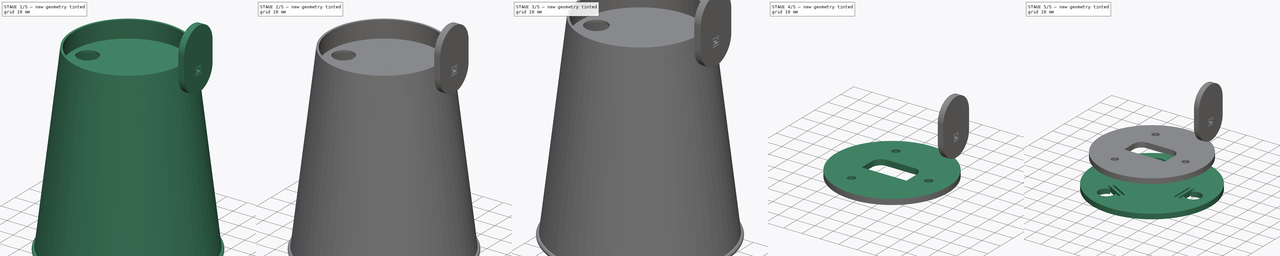
[diagram: build sequence overview — one tinted view per stage of 5, left to right]
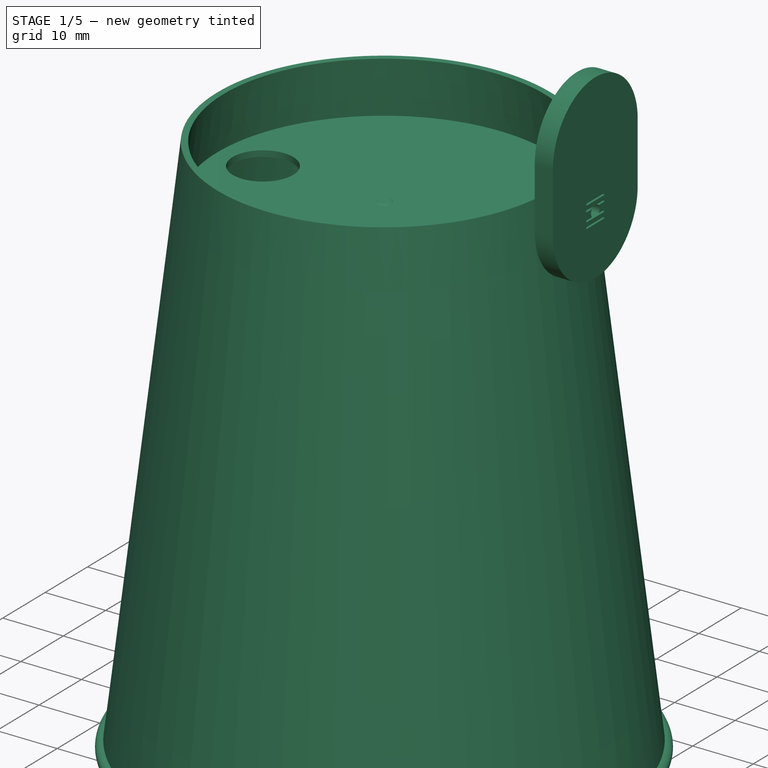
[diagram: stage 1 of 5 — iso view after this stage's code; geometry added in this stage tinted green]
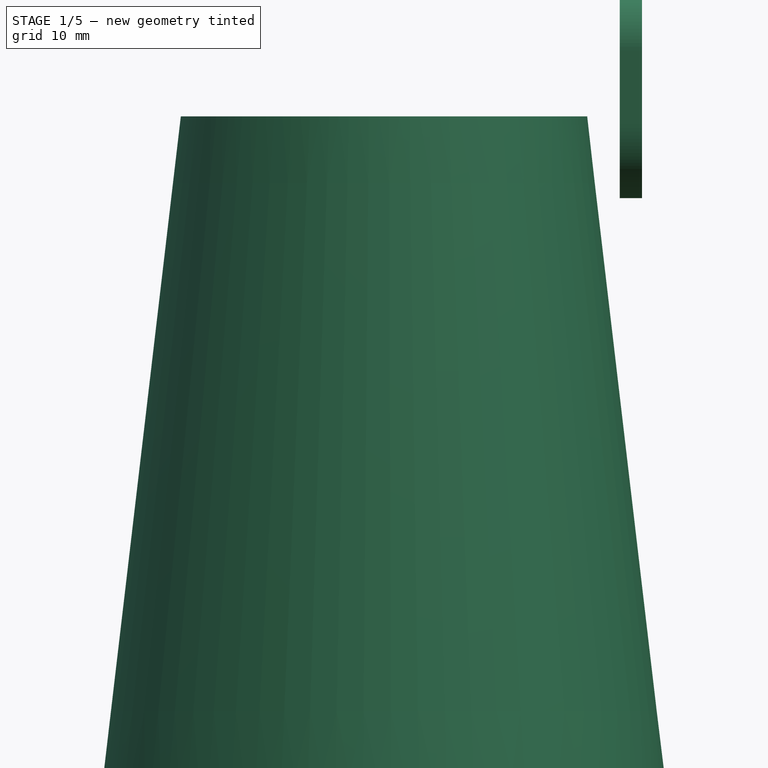
[diagram: stage 1 of 5 — front view after this stage's code; geometry added in this stage tinted green]
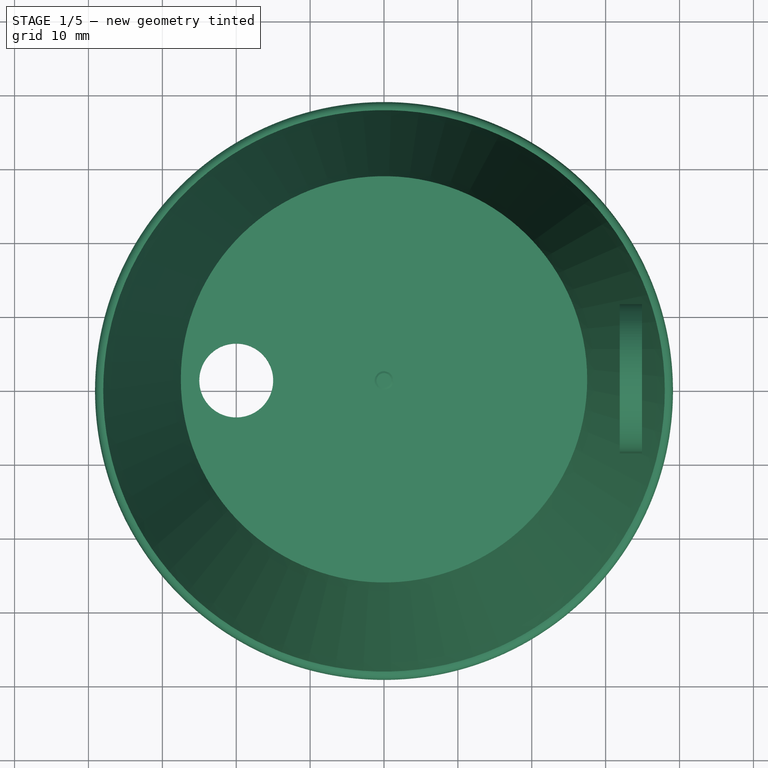
[diagram: stage 1 of 5 — top view after this stage's code; geometry added in this stage tinted green]
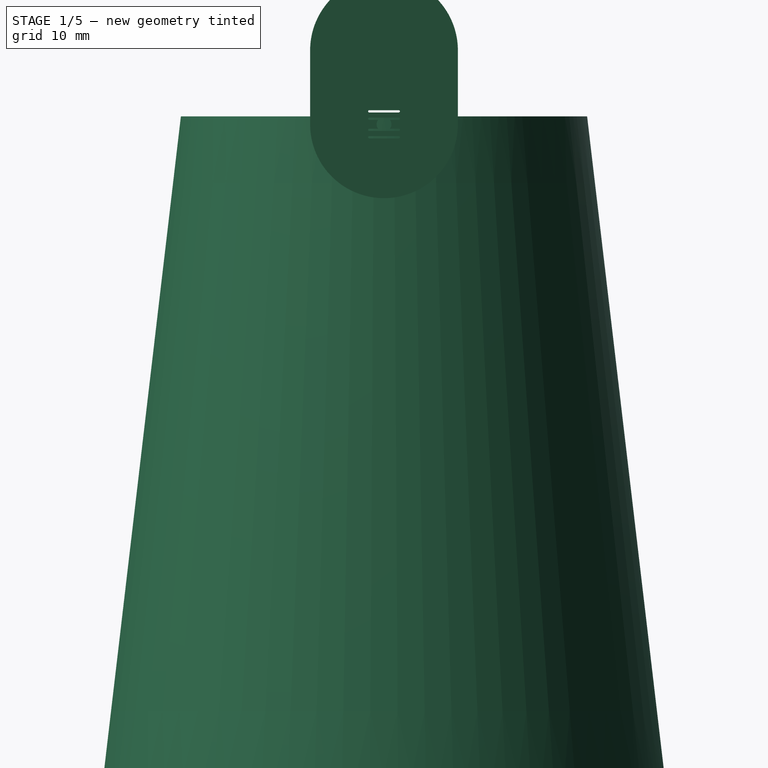
[diagram: stage 1 of 5 — right view after this stage's code; geometry added in this stage tinted green]
FCSTD DOCUMENT  (FreeCAD 0.21R33771 (Git))
Label: vibro_monster_v2
License: CERN Open Hardware Licence permissive
LicenseURL: https://cern-ohl.web.cern.ch/
objects: Part::Feature×15, Sketcher::SketchObject×14, PartDesign::Body×8, PartDesign::SubShapeBinder×7, PartDesign::Revolution×6, PartDesign::Pocket×5, App::Part×4, Part::Part2DObjectPython×4, PartDesign::Pad×3, PartDesign::PolarPattern×1, PartDesign::Fillet×1, PartDesign::Boolean×1, Part::FeaturePython×1, App::DocumentObjectGroup×1
note: 80 computed .brp shape members not serialized (recipe doc carries the construction recipe); baked Part::Feature solids carry a one-line shape summary decoded from their .brp

FEATURE [Sketcher::SketchObject] Sketch
  FullyConstrained = true
  MapMode = 5
  Placement = pos=(0,0,0) rot=(1,0,0;1.5708rad)
  Support = -> [XZ_Plane]
  sketch-geometry (9):
    g0: LineSegment StartX=0 StartY=82.365 StartZ=0 EndX=-27.5572 EndY=82.365 EndZ=0
    g1: LineSegment StartX=-27.5572 StartY=82.365 StartZ=0 EndX=-26.5 EndY=91.365 EndZ=0
    g2: LineSegment StartX=-26.5 StartY=91.365 StartZ=0 EndX=-27.5 EndY=91.365 EndZ=0
    g3: LineSegment StartX=-27.5 StartY=91.365 StartZ=0 EndX=-38 EndY=1.97956 EndZ=0
    g4: LineSegment StartX=-37.1295 StartY=0.877301 StartZ=0 EndX=-27.6747 EndY=81.365 EndZ=0
    g5: LineSegment StartX=-27.6747 StartY=81.365 StartZ=0 EndX=0 EndY=81.365 EndZ=0
    g6: LineSegment StartX=0 StartY=81.365 StartZ=0 EndX=0 EndY=82.365 EndZ=0
    g7: LineSegment StartX=-27.5572 StartY=82.365 StartZ=0 EndX=-27.6747 EndY=81.365 EndZ=0
    g8: ArcOfCircle CenterX=-38.1159 CenterY=0.993171 CenterZ=0 NormalX=0 NormalY=0 NormalZ=1 AngleXU=0 Radius=0.993171 StartAngle=1.45386 EndAngle=6.16625
  constraints (26):
    c: PointOnObject(g0,g-2)
    c: Horizontal(g0)
    c: Coincident(g0,g1)
    c: Coincident(g1,g2)
    c: Horizontal(g2)
    c: Coincident(g4,g5)
    c: Horizontal(g5)
    c: Coincident(g5,g6)
    c: Coincident(g6,g0)
    c: Vertical(g6)
    c: DistanceX(g2) = -27.5
    c: DistanceX(g2,g2) = 1
    c: Parallel(g3,g1)
    c: Parallel(g4,g3)
    c: Coincident(g7,g0)
    c: Coincident(g7,g4)
    c: Parallel(g7,g1)
    c: Distance(g1,g0) = 9
    c: DistanceY(g6,g6) = 1
    c: Coincident(g2,g3)
    c: Coincident(g8,g3)
    c: Tangent(g8,g-1)
    c: Tangent(g8,g4) = -1.5708
    c: Perpendicular(g8,g3)
    c: Distance(g3) = 90
    c: DistanceX(g3,g-1) = 38
FEATURE [PartDesign::Revolution] Revolution
  Angle = 360
  Axis = (0,2e-16,1)
  Base = (0,0,0)
  Placement = pos=(0,0,0) rot=(1,0,0;1.5708rad)
  Profile = -> Sketch
  ReferenceAxis = -> Sketch [V_Axis]
FEATURE [PartDesign::Body] Body002  label="tip"
  Group = -> [Sketch001,Revolution002]
  Origin = -> Origin002
  Tip = -> Revolution002
FEATURE [Sketcher::SketchObject] Sketch002
  FullyConstrained = true
  MapMode = 5
  Placement = pos=(0,0,0) rot=(1,0,0;1.5708rad)
  Support = -> [XZ_Plane003]
  sketch-geometry (7):
    g0: LineSegment StartX=0 StartY=76.5 StartZ=0 EndX=-4.5 EndY=76.5 EndZ=0
    g1: LineSegment StartX=-4.5 StartY=76.5 StartZ=0 EndX=-4.5 EndY=76.9 EndZ=0
    g2: LineSegment StartX=-4.5 StartY=76.9 StartZ=0 EndX=-3 EndY=76.9 EndZ=0
    g3: LineSegment StartX=-3 StartY=76.9 StartZ=0 EndX=-3 EndY=79.4 EndZ=0
    g4: ArcOfCircle CenterX=0.4025 CenterY=79.4 CenterZ=0 NormalX=0 NormalY=0 NormalZ=1 AngleXU=0 Radius=3.4025 StartAngle=1.99566 EndAngle=3.14159
    g5: LineSegment StartX=-1 StartY=82.5 StartZ=0 EndX=0 EndY=82.5 EndZ=0
    g6: LineSegment StartX=0 StartY=82.5 StartZ=0 EndX=0 EndY=76.5 EndZ=0
  constraints (21):
    c: PointOnObject(g0,g-2)
    c: Horizontal(g0)
    c: Coincident(g0,g1)
    c: Vertical(g1)
    c: Coincident(g1,g2)
    c: Horizontal(g2)
    c: Coincident(g2,g3)
    c: Vertical(g3)
    c: PointOnObject(g5,g-2)
    c: Horizontal(g5)
    c: Coincident(g5,g6)
    c: Coincident(g6,g0)
    c: DistanceX(g0,g0) = 4.5
    c: DistanceY(g1,g1) = 0.4
    c: DistanceX(g2,g2) = 1.5
    c: DistanceY(g6,g6) = 6
    c: DistanceY(g-1,g0) = 76.5
    c: DistanceX(g5,g5) = 1
    c: Coincident(g4,g5)
    c: Tangent(g4,g3) = 1.5708
    c: DistanceY(g3,g3) = 2.5
FEATURE [PartDesign::Revolution] Revolution003
  Angle = 360
  Axis = (0,2e-16,1)
  Base = (0,0,0)
  Placement = pos=(0,0,0) rot=(1,0,0;1.5708rad)
  Profile = -> Sketch002
  ReferenceAxis = -> Sketch002 [V_Axis]
FEATURE [PartDesign::SubShapeBinder] Binder002
  BindCopyOnChange = 0
  BindMode = 0
  ClaimChildren = false
  Context = -> Body010 [Binder002.]
  Fuse = false
  MakeFace = true
  OffsetFill = false
  OffsetIntersection = false
  OffsetJoinType = 0
  OffsetOpenResult = false
  PartialLoad = false
  Relative = true
  Support = -> [SunFounder_3_6V_DC_Motor_v2]
  _Version = 2
FEATURE [Sketcher::SketchObject] Sketch020
  ExternalGeometry = -> [Binder002]
  FullyConstrained = true
  MapMode = 5
  Placement = pos=(34.9117,-1.746e-13,-1.047e-13) rot=(0.57735,0.57735,0.57735;2.0944rad)
  Support = -> [Binder002]
  sketch-geometry (33):
    g0: ArcOfCircle CenterX=-2 CenterY=89.55 CenterZ=0 NormalX=0 NormalY=0 NormalZ=1 AngleXU=0 Radius=0.15 StartAngle=1.5708 EndAngle=4.71239
    g1: ArcOfCircle CenterX=2 CenterY=89.55 CenterZ=0 NormalX=0 NormalY=0 NormalZ=1 AngleXU=0 Radius=0.15 StartAngle=4.71239 EndAngle=7.85398
    g2: LineSegment StartX=-2 StartY=89.4 StartZ=0 EndX=2 EndY=89.4 EndZ=0
    g3: LineSegment StartX=2 StartY=89.7 StartZ=0 EndX=0.8 EndY=89.7 EndZ=0
    g4: LineSegment StartX=-2 StartY=89.55 StartZ=0 EndX=2 EndY=89.55 EndZ=0
    g5: LineSegment StartX=2.586e-13 StartY=90.3 StartZ=0 EndX=2.586e-13 EndY=89.55 EndZ=0
    g6: ArcOfCircle CenterX=-2 CenterY=91.05 CenterZ=0 NormalX=0 NormalY=0 NormalZ=1 AngleXU=0 Radius=0.15 StartAngle=1.5708 EndAngle=4.71239
    g7: ArcOfCircle CenterX=2 CenterY=91.05 CenterZ=0 NormalX=0 NormalY=0 NormalZ=1 AngleXU=0 Radius=0.15 StartAngle=4.71239 EndAngle=7.85398
    g8: LineSegment StartX=-2 StartY=90.9 StartZ=0 EndX=-0.8 EndY=90.9 EndZ=0
    g9: LineSegment StartX=2 StartY=91.2 StartZ=0 EndX=-2 EndY=91.2 EndZ=0
    g10: LineSegment StartX=-2 StartY=91.05 StartZ=0 EndX=2 EndY=91.05 EndZ=0
    g11: LineSegment StartX=2.586e-13 StartY=91.05 StartZ=0 EndX=2.586e-13 EndY=90.3 EndZ=0
    g12: ArcOfCircle CenterX=2.586e-13 CenterY=90.3 CenterZ=0 NormalX=0 NormalY=0 NormalZ=1 AngleXU=0 Radius=1 StartAngle=2.49809 EndAngle=3.78509
    g13: ArcOfCircle CenterX=2.586e-13 CenterY=90.3 CenterZ=0 NormalX=0 NormalY=0 NormalZ=1 AngleXU=0 Radius=1 StartAngle=5.63968 EndAngle=6.92669
    g14: LineSegment StartX=2 StartY=90.9 StartZ=0 EndX=0.8 EndY=90.9 EndZ=0
    g15: LineSegment StartX=2.588e-13 StartY=89.3 StartZ=0 EndX=2.588e-13 EndY=89.4 EndZ=0
    g16: ArcOfCircle CenterX=-2 CenterY=88.55 CenterZ=0 NormalX=0 NormalY=0 NormalZ=1 AngleXU=0 Radius=0.15 StartAngle=1.5708 EndAngle=4.71239
    g17: ArcOfCircle CenterX=2 CenterY=88.55 CenterZ=0 NormalX=0 NormalY=0 NormalZ=1 AngleXU=0 Radius=0.15 StartAngle=4.71239 EndAngle=7.85398
    g18: LineSegment StartX=-2 StartY=88.4 StartZ=0 EndX=2 EndY=88.4 EndZ=0
    g19: LineSegment StartX=2 StartY=88.7 StartZ=0 EndX=-2 EndY=88.7 EndZ=0
    g20: ArcOfCircle CenterX=-2 CenterY=92.05 CenterZ=0 NormalX=0 NormalY=0 NormalZ=1 AngleXU=0 Radius=0.15 StartAngle=1.5708 EndAngle=4.71239
    g21: ArcOfCircle CenterX=2 CenterY=92.05 CenterZ=0 NormalX=0 NormalY=0 NormalZ=1 AngleXU=0 Radius=0.15 StartAngle=4.71239 EndAngle=7.85398
    g22: LineSegment StartX=-2 StartY=91.9 StartZ=0 EndX=2 EndY=91.9 EndZ=0
    g23: LineSegment StartX=2 StartY=92.2 StartZ=0 EndX=-2 EndY=92.2 EndZ=0
    g24: LineSegment StartX=-2 StartY=92.05 StartZ=0 EndX=2 EndY=92.05 EndZ=0
    g25: LineSegment StartX=-2 StartY=88.55 StartZ=0 EndX=2 EndY=88.55 EndZ=0
    g26: LineSegment StartX=2.586e-13 StartY=88.55 StartZ=0 EndX=2.586e-13 EndY=89.55 EndZ=0
    g27: LineSegment StartX=2.586e-13 StartY=92.05 StartZ=0 EndX=2.586e-13 EndY=91.05 EndZ=0
    g28: ArcOfCircle CenterX=2.587e-13 CenterY=100.3 CenterZ=0 NormalX=0 NormalY=0 NormalZ=1 AngleXU=0 Radius=10 StartAngle=0 EndAngle=3.14159
    g29: ArcOfCircle CenterX=2.586e-13 CenterY=90.3 CenterZ=0 NormalX=0 NormalY=0 NormalZ=1 AngleXU=0 Radius=10 StartAngle=3.14159 EndAngle=6.28319
    g30: LineSegment StartX=-10 StartY=100.3 StartZ=0 EndX=-10 EndY=90.3 EndZ=0
    g31: LineSegment StartX=10 StartY=90.3 StartZ=0 EndX=10 EndY=100.3 EndZ=0
    g32: LineSegment StartX=-0.8 StartY=89.7 StartZ=0 EndX=-2 EndY=89.7 EndZ=0
  constraints (82):
    c: Tangent(g0,g2) = -1.5708
    c: Tangent(g2,g1) = -1.5708
    c: Tangent(g1,g3) = -1.5708
    c: Equal(g0,g1)
    c: Horizontal(g2)
    c: Coincident(g4,g1)
    c: Vertical(g5)
    c: Symmetric(g0,g1,g5)
    c: Radius(g0) = 0.15
    c: DistanceX(g4,g4) = 4
    c: Coincident(g5,g-3)
    c: Tangent(g6,g8) = -1.5708
    c: Tangent(g7,g9) = -1.5708
    c: Tangent(g9,g6) = -1.5708
    c: Equal(g6,g7)
    c: Horizontal(g8)
    c: Coincident(g10,g6)
    c: Coincident(g10,g7)
    c: Vertical(g11)
    c: Symmetric(g6,g7,g11)
    c: Equal(g5,g11)
    c: Equal(g10,g4)
    c: Equal(g0,g6)
    c: Coincident(g11,g5)
    c: Coincident(g12,g5)
    c: PointOnObject(g12,g-3)
    c: Coincident(g13,g12)
    c: PointOnObject(g13,g8)
    c: PointOnObject(g13,g3)
    c: Equal(g13,g12)
    c: PointOnObject(g12,g3)
    c: Coincident(g8,g12)
    c: PointOnObject(g3,g-3)
    c: Coincident(g14,g13)
    c: Horizontal(g14)
    c: Tangent(g14,g7) = 1.5708
    c: Horizontal(g3)
    c: Coincident(g0,g4)
    c: Coincident(g15,g-3)
    c: PointOnObject(g15,g2)
    c: Vertical(g15)
    c: DistanceY(g15,g15) = 0.1
    c: Tangent(g16,g18) = -1.5708
    c: Tangent(g18,g17) = -1.5708
    c: Tangent(g17,g19) = -1.5708
    c: Tangent(g19,g16) = -1.5708
    c: Equal(g16,g17)
    c: Horizontal(g18)
    c: Equal(g16,g0)
    c: Tangent(g20,g22) = -1.5708
    c: Tangent(g22,g21) = -1.5708
    c: Tangent(g21,g23) = -1.5708
    c: Tangent(g23,g20) = -1.5708
    c: Equal(g20,g21)
    c: Horizontal(g22)
    c: Equal(g20,g0)
    c: Coincident(g24,g20)
    c: Coincident(g24,g21)
    c: Coincident(g25,g16)
    c: Coincident(g25,g17)
    c: Vertical(g27)
    c: Vertical(g26)
    c: Equal(g4,g25)
    c: Symmetric(g16,g17,g26)
    c: Coincident(g26,g5)
    c: Equal(g24,g10)
    c: Symmetric(g20,g21,g27)
    c: Coincident(g27,g11)
    c: Equal(g27,g26)
    c: DistanceY(g27,g27) = 1
    c: Tangent(g28,g30) = -1.5708
    c: Tangent(g30,g29) = -1.5708
    c: Tangent(g29,g31) = -1.5708
    c: Tangent(g31,g28) = -1.5708
    c: Equal(g28,g29)
    c: Vertical(g30)
    c: Coincident(g29,g12)
    c: Radius(g29) = 10
    c: DistanceY(g30,g30) = 10
    c: PointOnObject(g32,g12)
    c: Horizontal(g32)
    c: Tangent(g32,g0) = -1.5708
FEATURE [PartDesign::Pad] Pad002
  Direction = (1,-4.9e-15,-3.2e-15)
  Length = 3
  Length2 = 10
  Profile = -> Sketch020
  ReferenceAxis = -> Sketch020 [N_Axis]
  Reversed = true
  Type = 0
FEATURE [PartDesign::Body] Body005  label="large_disk"
  Group = -> [Sketch015,Binder,Binder001,Revolution004,Binder006,Sketch024,Pocket002,Sketch025,Pad003,Sketch026,Pocket003]
  Origin = -> Origin009
  Placement = pos=(0,0,-20) rot=(0,0,1;0rad)
  Tip = -> Pocket003
FEATURE [Sketcher::SketchObject] Sketch027
  FullyConstrained = true
  MapMode = 5
  Placement = pos=(0,3.62e-14,82.365) rot=(0,0,1;3.14159rad)
  Support = -> [Revolution]
  sketch-geometry (1):
    g0: Circle CenterX=20 CenterY=0 CenterZ=0 NormalX=0 NormalY=0 NormalZ=1 AngleXU=0 Radius=5
  constraints (3):
    c: PointOnObject(g0,g-1)
    c: Diameter(g0) = 10
    c: DistanceX(g-1,g0) = 20
FEATURE [PartDesign::Pocket] Pocket004
  BaseFeature = -> Revolution
  Direction = (0,-4e-16,-1)
  Length = 5
  Length2 = 5
  Placement = pos=(0,0,0) rot=(1,0,0;1.5708rad)
  Profile = -> Sketch027
  ReferenceAxis = -> Sketch027 [N_Axis]
  Type = 1
FEATURE [PartDesign::Body] Body  label="Cup"
  Group = -> [Sketch,Revolution,Sketch027,Pocket004]
  Origin = -> Origin
  Tip = -> Pocket004
FEATURE [Part::Part2DObjectPython] Shape2DView  label="Cup_DXF"  # Draft 2D object (typed FeaturePython)
  AutoUpdate = true
  Base = -> Body
  Clip = false
  FuseArch = false
  HiddenLines = false
  InPlace = true
  OnlySolids = false
  Projection = (0,0,1)
  ProjectionMode = 0
  SegmentLength = 0.05
  Tessellation = false
  VisibleOnly = false
FEATURE [Part::Part2DObjectPython] Shape2DView001  label="large_disk_DXF"  # Draft 2D object (typed FeaturePython)
  AutoUpdate = true
  Base = -> Body005
  Clip = false
  FuseArch = false
  HiddenLines = false
  InPlace = true
  OnlySolids = false
  Projection = (0,0,1)
  ProjectionMode = 0
  SegmentLength = 0.05
  Tessellation = false
  VisibleOnly = false
FEATURE [Part::Part2DObjectPython] Shape2DView002  label="small_disk_DXF"  # Draft 2D object (typed FeaturePython)
  AutoUpdate = true
  Base = -> Body011
  Clip = false
  FuseArch = false
  HiddenLines = false
  InPlace = true
  OnlySolids = false
  Projection = (0,0,1)
  ProjectionMode = 0
  SegmentLength = 0.05
  Tessellation = false
  VisibleOnly = false
FEATURE [Part::Part2DObjectPython] Shape2DView003  label="unbalancer_DXF"  # Draft 2D object (typed FeaturePython)
  AutoUpdate = true
  Base = -> Body010
  Clip = false
  FuseArch = false
  HiddenLines = false
  InPlace = true
  OnlySolids = false
  Projection = (1,0,0)
  ProjectionMode = 0
  SegmentLength = 0.05
  Tessellation = false
  VisibleOnly = false
FEATURE [App::DocumentObjectGroup] Group  label="DXF"
  Group = -> [Shape2DView,Shape2DView001,Shape2DView003,Shape2DView002]
FEATURE [Part::Feature] Part__Feature014  label="Holder_2xAA"
  Placement = pos=(-1.24e-14,-5.5,50.5) rot=(0.57735,0.57735,0.57735;4.18879rad)
  shape: bbox 50.31 x 14.46 x 72.96 mm, 239 faces (baked)
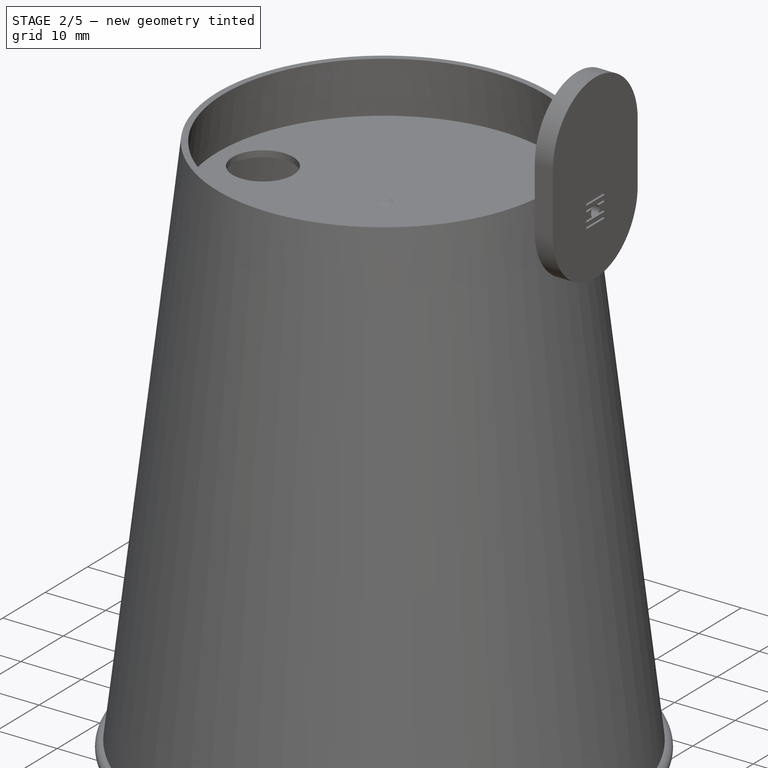
[diagram: stage 2 of 5 — iso view after this stage's code; geometry added in this stage tinted green]
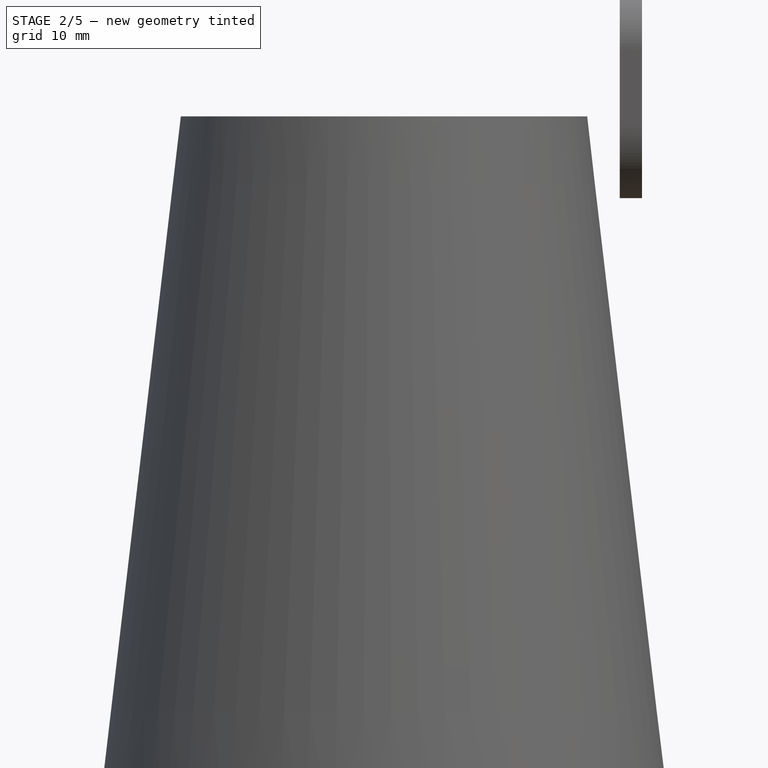
[diagram: stage 2 of 5 — front view after this stage's code; geometry added in this stage tinted green]
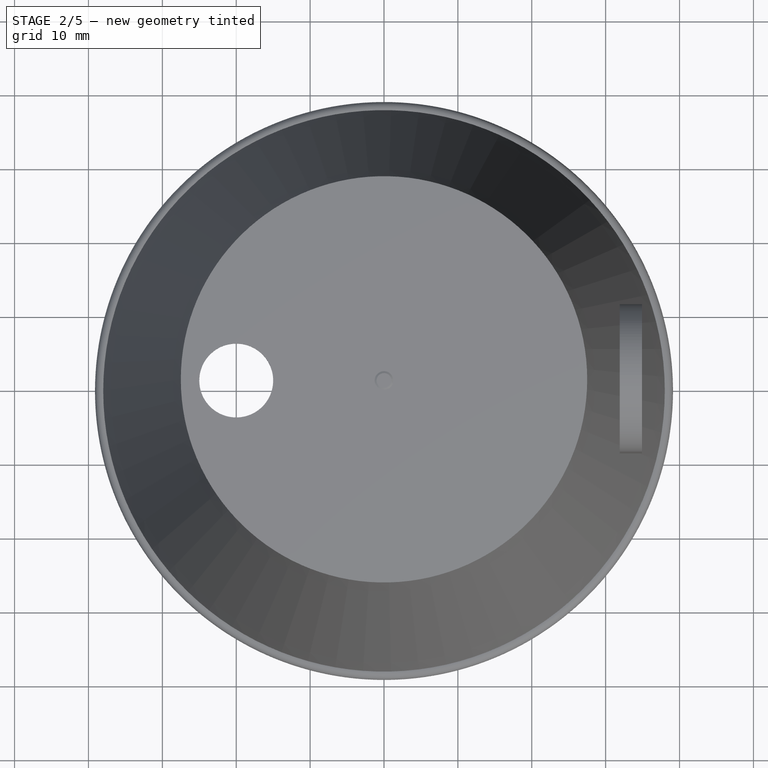
[diagram: stage 2 of 5 — top view after this stage's code; geometry added in this stage tinted green]
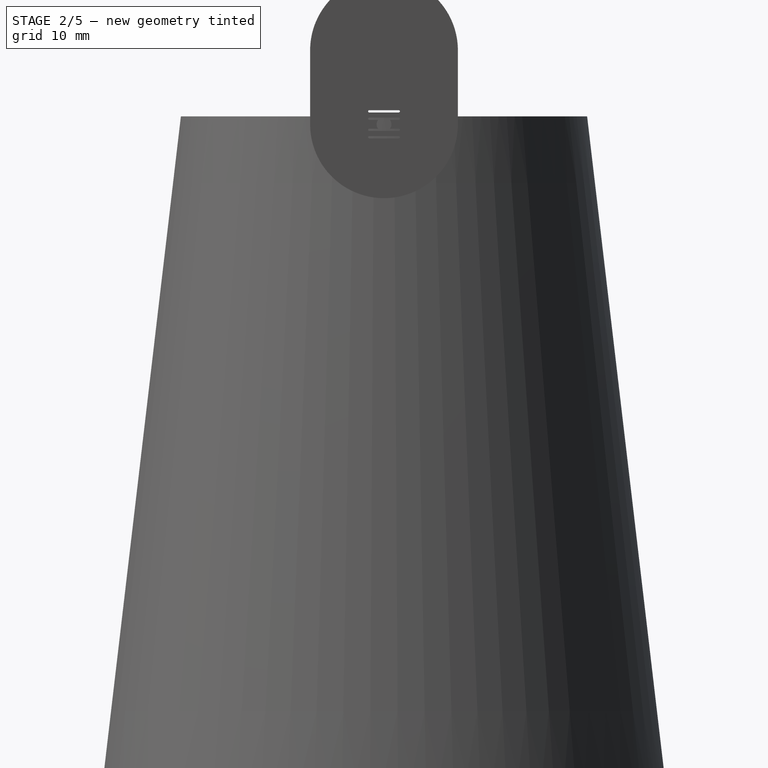
[diagram: stage 2 of 5 — right view after this stage's code; geometry added in this stage tinted green]
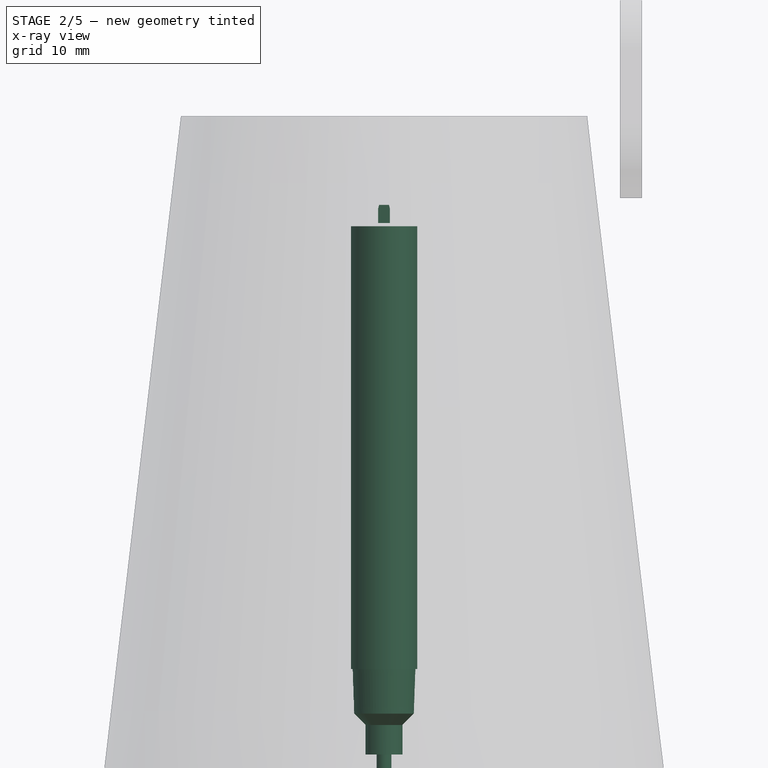
[diagram: stage 2 of 5 — x-ray composite at the front view; earlier geometry ghosted, this stage's added geometry solid]
FEATURE [Sketcher::SketchObject] Sketch014
  FullyConstrained = true
  MapMode = 5
  Placement = pos=(0,0,0) rot=(1,0,0;1.5708rad)
  Support = -> [XZ_Plane001]
  sketch-geometry (9):
    g0: LineSegment StartX=0 StartY=76.5 StartZ=0 EndX=-4.5 EndY=76.5 EndZ=0
    g1: LineSegment StartX=-4.5 StartY=76.5 StartZ=0 EndX=-4.5 EndY=16.5369 EndZ=0
    g2: LineSegment StartX=-4.5 StartY=16.5369 StartZ=0 EndX=-4.25 EndY=16.5369 EndZ=0
    g3: LineSegment StartX=-4.25 StartY=16.5369 StartZ=0 EndX=-4.0406 EndY=10.5406 EndZ=0
    g4: LineSegment StartX=-4.0406 StartY=10.5406 StartZ=0 EndX=-2.5 EndY=9 EndZ=0
    g5: LineSegment StartX=-2.5 StartY=9 StartZ=0 EndX=-2.5 EndY=5 EndZ=0
    g6: LineSegment StartX=-2.5 StartY=5 StartZ=0 EndX=0 EndY=5 EndZ=0
    g7: LineSegment StartX=0 StartY=5 StartZ=0 EndX=0 EndY=76.5 EndZ=0
    g8: LineSegment StartX=0 StartY=5 StartZ=0 EndX=0 EndY=0 EndZ=0
  constraints (26):
    c: PointOnObject(g0,g-2)
    c: Horizontal(g0)
    c: Coincident(g0,g1)
    c: Vertical(g1)
    c: Coincident(g1,g2)
    c: Horizontal(g2)
    c: Coincident(g2,g3)
    c: Coincident(g3,g4)
    c: Coincident(g4,g5)
    c: Vertical(g5)
    c: Coincident(g5,g6)
    c: PointOnObject(g6,g-2)
    c: Horizontal(g6)
    c: Coincident(g6,g7)
    c: Coincident(g7,g0)
    c: DistanceX(g0,g0) = 4.5
    c: DistanceX(g2,g2) = 0.25
    c: DistanceX(g6,g6) = 2.5
    c: DistanceY(g5,g5) = 4
    c: Distance(g3) = 6
    c: Angle(g4,g5) = 2.35619
    c: Angle(g2,g3) = 1.6057
    c: Coincident(g8,g6)
    c: Coincident(g-1,g8)
    c: DistanceY(g8,g8) = 5
    c: DistanceY(g8,g0) = 76.5
FEATURE [PartDesign::Revolution] Revolution001
  Angle = 360
  Axis = (0,2e-16,1)
  Base = (0,0,0)
  Placement = pos=(0,0,0) rot=(1,0,0;1.5708rad)
  Profile = -> Sketch014
  ReferenceAxis = -> Sketch014 [V_Axis]
FEATURE [PartDesign::Body] Body001
  Group = -> [Sketch014,Revolution001]
  Origin = -> Origin001
  Tip = -> Revolution001
FEATURE [Sketcher::SketchObject] Sketch001
  FullyConstrained = true
  MapMode = 5
  Placement = pos=(0,0,0) rot=(0.57735,0.57735,0.57735;2.0944rad)
  Support = -> [YZ_Plane002]
  sketch-geometry (5):
    g0: LineSegment StartX=0 StartY=5 StartZ=0 EndX=0 EndY=0 EndZ=0
    g1: LineSegment StartX=0 StartY=0 StartZ=0 EndX=-0.330127 EndY=0.571797 EndZ=0
    g2: ArcOfCircle CenterX=4 CenterY=3.0718 CenterZ=0 NormalX=0 NormalY=0 NormalZ=1 AngleXU=0 Radius=5 StartAngle=3.14159 EndAngle=3.66519
    g3: LineSegment StartX=-1 StartY=3.0718 StartZ=0 EndX=-1 EndY=5 EndZ=0
    g4: LineSegment StartX=-1 StartY=5 StartZ=0 EndX=0 EndY=5 EndZ=0
  constraints (13):
    c: PointOnObject(g0,g-2)
    c: Coincident(g0,g-1)
    c: Coincident(g0,g1)
    c: Tangent(g1,g2) = 1.5708
    c: Vertical(g3)
    c: Coincident(g3,g4)
    c: Coincident(g4,g0)
    c: Horizontal(g4)
    c: DistanceY(g0,g0) = 5
    c: DistanceX(g4,g4) = 1
    c: Tangent(g2,g3) = 1.5708
    c: Angle(g0,g1) = 0.523599
    c: Radius(g2) = 5
FEATURE [PartDesign::Revolution] Revolution002
  Angle = 360
  Axis = (-2e-16,3e-16,1)
  Base = (0,0,0)
  Placement = pos=(0,0,0) rot=(0.57735,0.57735,0.57735;2.0944rad)
  Profile = -> Sketch001
  ReferenceAxis = -> Sketch001 [V_Axis]
FEATURE [Sketcher::SketchObject] Sketch003
  ExternalGeometry = -> [Revolution003]
  FullyConstrained = true
  MapMode = 5
  Placement = pos=(0,0,0) rot=(1,0,0;1.5708rad)
  Support = -> [XZ_Plane003]
  sketch-geometry (6):
    g0: LineSegment StartX=-0.8 StartY=76.9 StartZ=0 EndX=0.8 EndY=76.9 EndZ=0
    g1: LineSegment StartX=0.8 StartY=76.9 StartZ=0 EndX=0.8 EndY=78.9 EndZ=0
    g2: LineSegment StartX=0.8 StartY=78.9 StartZ=0 EndX=0.666025 EndY=79.4 EndZ=0
    g3: LineSegment StartX=0.666025 StartY=79.4 StartZ=0 EndX=-0.666025 EndY=79.4 EndZ=0
    g4: LineSegment StartX=-0.666025 StartY=79.4 StartZ=0 EndX=-0.8 EndY=78.9 EndZ=0
    g5: LineSegment StartX=-0.8 StartY=78.9 StartZ=0 EndX=-0.8 EndY=76.9 EndZ=0
  constraints (16):
    c: Coincident(g0,g1)
    c: Vertical(g1)
    c: Coincident(g1,g2)
    c: Coincident(g2,g3)
    c: Coincident(g3,g4)
    c: Coincident(g4,g5)
    c: Coincident(g5,g0)
    c: Vertical(g5)
    c: Symmetric(g0,g0,g-2)
    c: PointOnObject(g0,g-3)
    c: Symmetric(g3,g2,g-2)
    c: DistanceX(g0,g0) = 1.6
    c: Angle(g5,g4) = 2.87979
    c: Equal(g5,g1)
    c: DistanceY(g1,g1) = 2
    c: PointOnObject(g3,g-4)
FEATURE [PartDesign::Pad] Pad
  BaseFeature = -> Revolution003
  Direction = (0,-1,2e-16)
  Length = 4
  Length2 = 10
  Placement = pos=(0,0,0) rot=(1,0,0;1.5708rad)
  Profile = -> Sketch003
  ReferenceAxis = -> Sketch003 [N_Axis]
  Type = 0
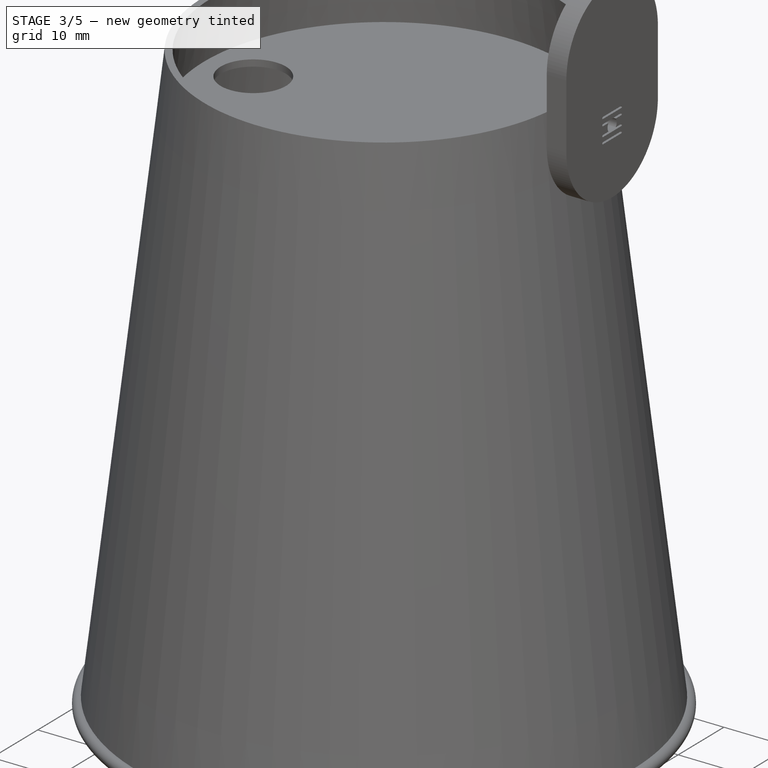
[diagram: stage 3 of 5 — iso view after this stage's code; geometry added in this stage tinted green]
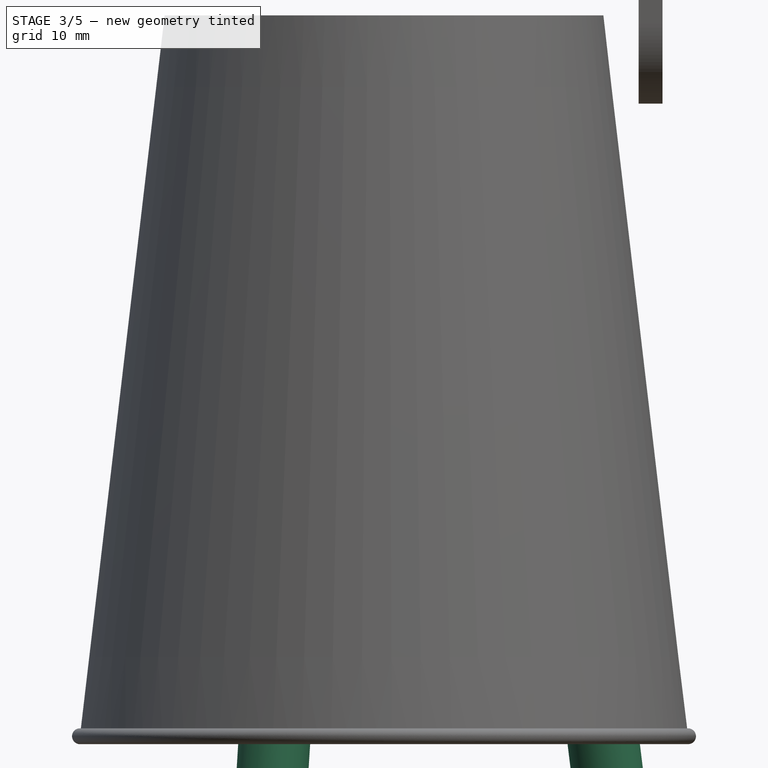
[diagram: stage 3 of 5 — front view after this stage's code; geometry added in this stage tinted green]
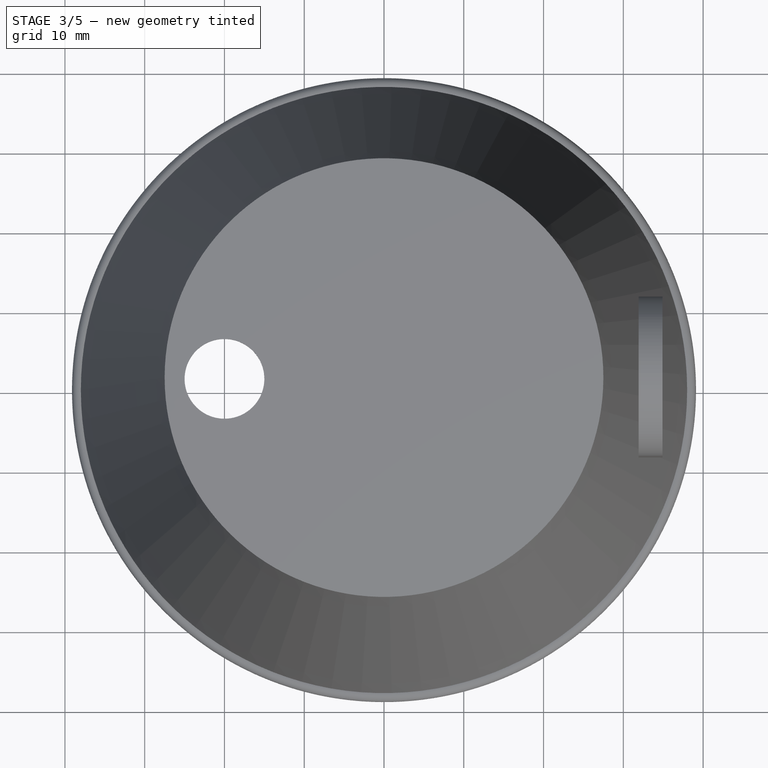
[diagram: stage 3 of 5 — top view after this stage's code; geometry added in this stage tinted green]
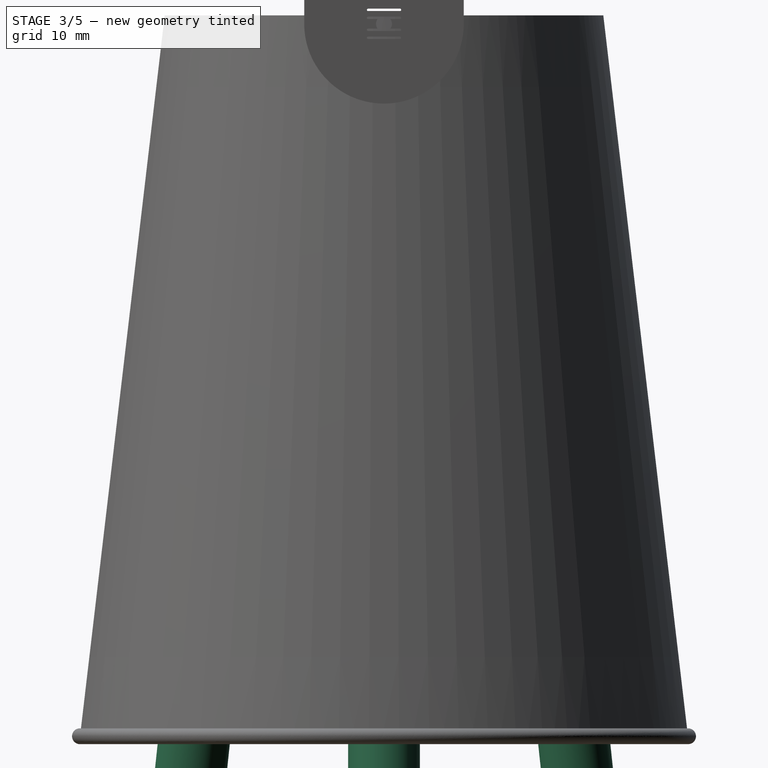
[diagram: stage 3 of 5 — right view after this stage's code; geometry added in this stage tinted green]
FEATURE [PartDesign::PolarPattern] PolarPattern
  Angle = 360
  Axis = -> Sketch003 [V_Axis]
  BaseFeature = -> Pad
  Occurrences = 6
  Originals = -> [Pad]
  Placement = pos=(0,0,0) rot=(1,0,0;1.5708rad)
FEATURE [PartDesign::Fillet] Fillet
  Base = -> PolarPattern [Edge97,Edge98,Edge96,Edge95,Edge93,Edge121,Edge122,Edge100,Edge94,Edge83,Edge84,Edge85,Edge86,Edge81,Edge82,Edge119,Edge120,Edge88,Edge33,Edge38,Edge37,Edge36,Edge35,Edge40,Edge112,Edge111,Edge34,Edge47,Edge48,Edge49,Edge50,Edge45,Edge46,Edge113,Edge114,Edge52,Edge57,Edge62,Edge61,Edge60,+14 more]
  BaseFeature = -> PolarPattern
  Placement = pos=(0,0,0) rot=(1,0,0;1.5708rad)
  Radius = 0.5
  SupportTransform = false
  UseAllEdges = false
FEATURE [PartDesign::Body] Body003  label="end_cap"
  Group = -> [Sketch002,Revolution003,Sketch003,Pad,PolarPattern,Fillet]
  Origin = -> Origin003
  Tip = -> Fillet
FEATURE [PartDesign::Boolean] Boolean
  Group = -> [Body001,Body002,Body003]
  Type = 0
FEATURE [PartDesign::Body] Body004
  Group = -> [Boolean]
  Origin = -> Origin004
  Placement = pos=(30,0,-20) rot=(0,-1,0;0.122173rad)
  Tip = -> Boolean
FEATURE [Part::FeaturePython] Array  label="Array_Pens"  # Draft array (typed FeaturePython)
  AlwaysSyncPlacement = false
  Angle = 360
  ArrayType = 1
  Axis = (0,0,1)
  Base = -> Body004
  Center = (0,0,0)
  Count = 3
  ExpandArray = false
  Fuse = false
  IntervalAxis = (0,0,0)
  IntervalX = (50,0,0)
  IntervalY = (0,50,0)
  IntervalZ = (0,0,50)
  NumberCircles = 3
  NumberPolar = 3
  NumberX = 2
  NumberY = 2
  NumberZ = 1
  PlacementList = 3 placements: [(30,0,-20),(-15,25.9808,-20),(-15,-25.9808,-20)]
  RadialDistance = 50
  ScaleList = (3) [(1,1,1),(1,1,1),(1,1,1)]
  Symmetry = 1
  TangentialDistance = 25
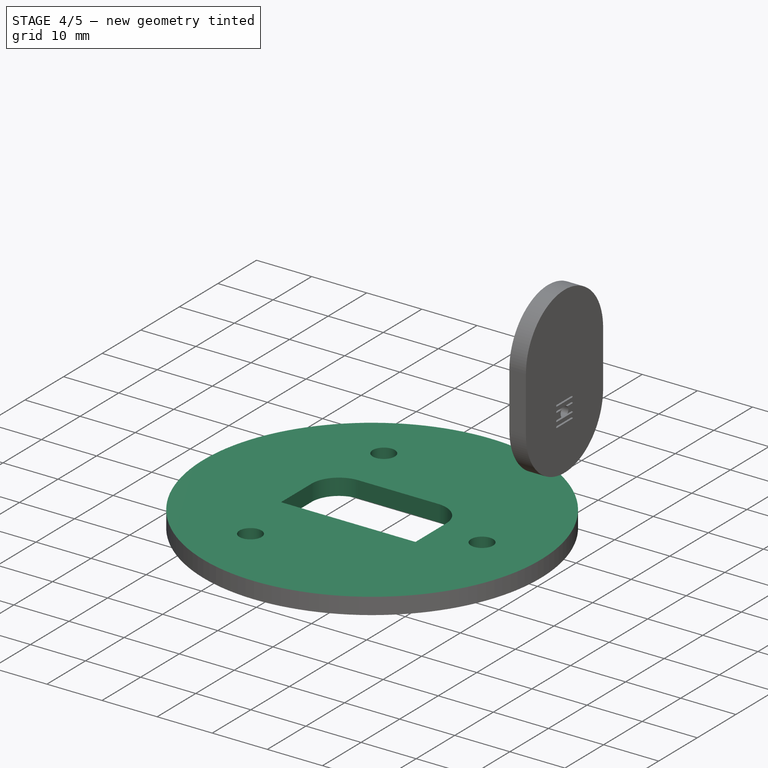
[diagram: stage 4 of 5 — iso view after this stage's code; geometry added in this stage tinted green]
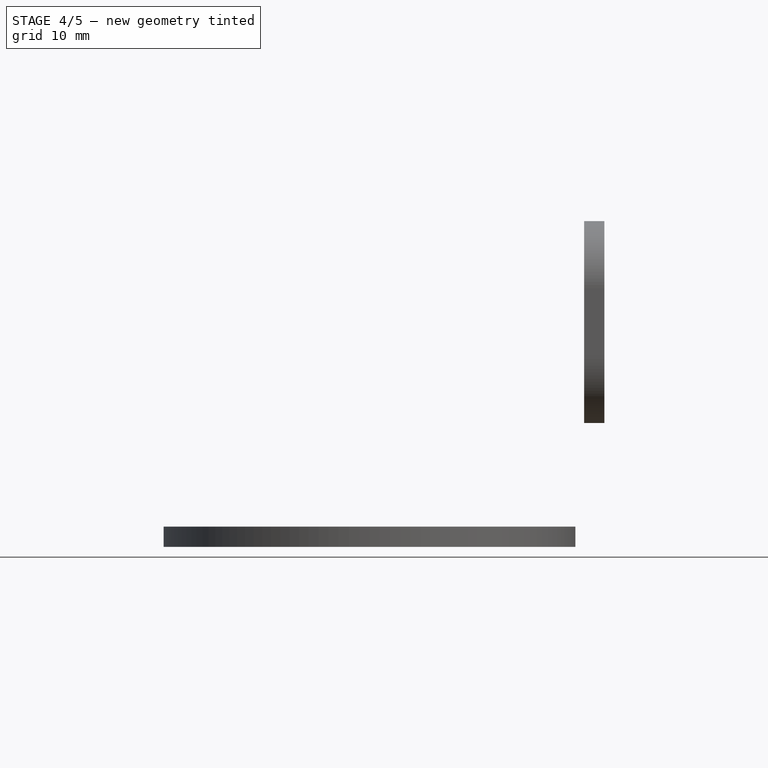
[diagram: stage 4 of 5 — front view after this stage's code; geometry added in this stage tinted green]
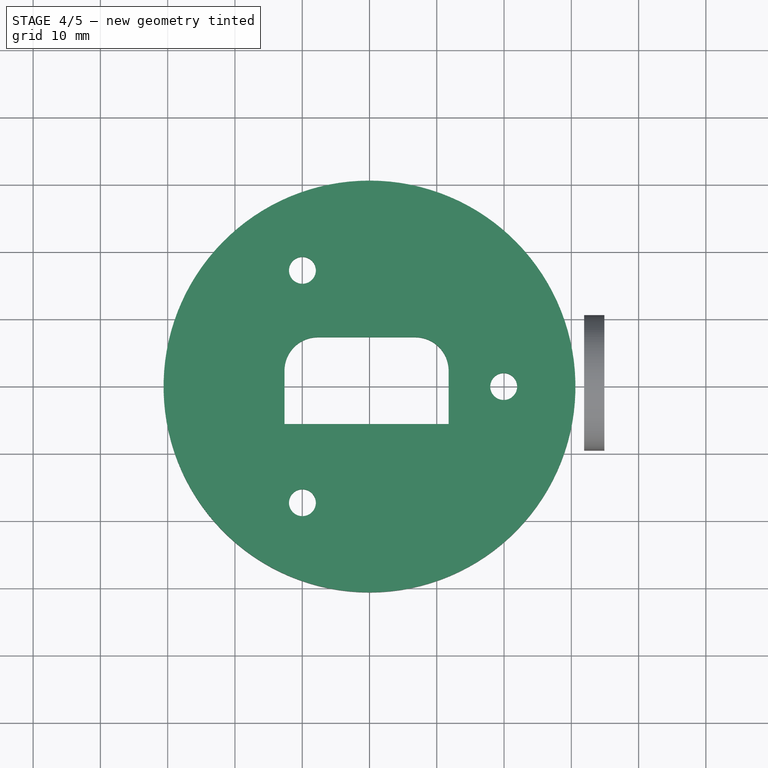
[diagram: stage 4 of 5 — top view after this stage's code; geometry added in this stage tinted green]
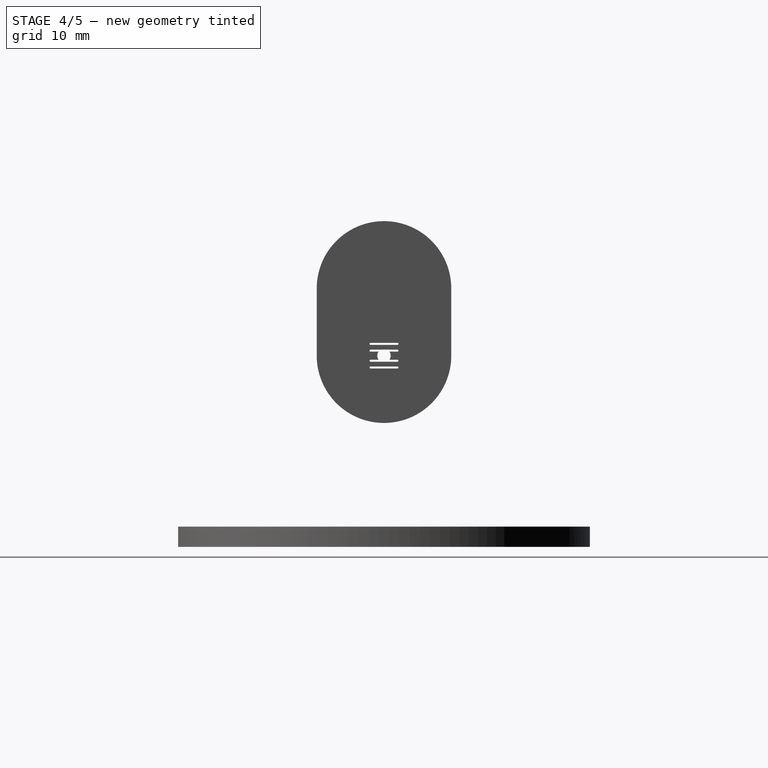
[diagram: stage 4 of 5 — right view after this stage's code; geometry added in this stage tinted green]
FEATURE [PartDesign::Body] Body010  label="UnBalancer"
  Group = -> [Binder002,Sketch020,Pad002]
  Origin = -> Origin014
  Tip = -> Pad002
FEATURE [PartDesign::SubShapeBinder] Binder003
  BindCopyOnChange = 0
  BindMode = 0
  ClaimChildren = false
  Context = -> Body011 [Binder003.]
  Fuse = false
  MakeFace = true
  OffsetFill = false
  OffsetIntersection = false
  OffsetJoinType = 0
  OffsetOpenResult = false
  PartialLoad = false
  Relative = true
  Support = -> [Body]
  _Version = 2
FEATURE [PartDesign::SubShapeBinder] Binder004
  BindCopyOnChange = 0
  BindMode = 0
  ClaimChildren = false
  Context = -> Body011 [Binder004.]
  Fuse = false
  MakeFace = true
  OffsetFill = false
  OffsetIntersection = false
  OffsetJoinType = 0
  OffsetOpenResult = false
  PartialLoad = false
  Relative = true
  Support = -> [Array]
  _Version = 2
FEATURE [PartDesign::SubShapeBinder] Binder005
  BindCopyOnChange = 0
  BindMode = 0
  ClaimChildren = false
  Context = -> Body011 [Binder005.]
  Fuse = false
  MakeFace = true
  OffsetFill = false
  OffsetIntersection = false
  OffsetJoinType = 0
  OffsetOpenResult = false
  PartialLoad = false
  Relative = true
  Support = -> [koszyk_2xAAA_214]
  _Version = 2
FEATURE [Sketcher::SketchObject] Sketch021
  ExternalGeometry = -> [Binder004,Binder003]
  FullyConstrained = true
  MapMode = 5
  Placement = pos=(0,0,0) rot=(0.57735,0.57735,0.57735;2.0944rad)
  Support = -> [YZ_Plane015]
  sketch-geometry (5):
    g0: LineSegment StartX=-30.6106 StartY=64.8851 StartZ=0 EndX=0 EndY=64.8851 EndZ=0
    g1: LineSegment StartX=0 StartY=64.8851 StartZ=0 EndX=0 EndY=61.8851 EndZ=0
    g2: LineSegment StartX=0 StartY=61.8851 StartZ=0 EndX=-30.6106 EndY=61.8851 EndZ=0
    g3: LineSegment StartX=-30.6106 StartY=61.8851 StartZ=0 EndX=-30.6106 EndY=64.8851 EndZ=0
    g4: LineSegment StartX=-38 StartY=1.97956 StartZ=0 EndX=-27.5 EndY=91.365 EndZ=0
  constraints (14):
    c: Coincident(g0,g1)
    c: Coincident(g1,g2)
    c: Coincident(g2,g3)
    c: Coincident(g3,g0)
    c: Horizontal(g0)
    c: Horizontal(g2)
    c: Vertical(g1)
    c: Vertical(g3)
    c: DistanceY(g1,g1) = 3
    c: PointOnObject(g0,g-2)
    c: PointOnObject(g-3,g2)
    c: Coincident(g4,g-5)
    c: Coincident(g4,g-4)
    c: PointOnObject(g0,g4)
FEATURE [PartDesign::Revolution] Revolution008
  Angle = 360
  Axis = (-2e-16,3e-16,1)
  Base = (0,0,0)
  Placement = pos=(0,0,0) rot=(0.57735,0.57735,0.57735;2.0944rad)
  Profile = -> Sketch021
  ReferenceAxis = -> Sketch021 [V_Axis]
FEATURE [Sketcher::SketchObject] Sketch022
  ExternalGeometry = -> [Binder005]
  FullyConstrained = true
  MapMode = 5
  Placement = pos=(-2.85e-14,1.82e-14,64.8851) rot=(0,0,-1;1.5708rad)
  Support = -> [Revolution008]
  sketch-geometry (6):
    g0: LineSegment StartX=-2.37865 StartY=11.7607 StartZ=0 EndX=5.57135 EndY=11.7607 EndZ=0
    g1: LineSegment StartX=5.57135 StartY=11.7607 StartZ=0 EndX=5.57135 EndY=-12.6393 EndZ=0
    g2: LineSegment StartX=5.57135 StartY=-12.6393 StartZ=0 EndX=-2.37865 EndY=-12.6393 EndZ=0
    g3: ArcOfCircle CenterX=-2.37865 CenterY=-7.68932 CenterZ=0 NormalX=0 NormalY=0 NormalZ=1 AngleXU=0 Radius=4.95 StartAngle=3.14159 EndAngle=4.71239
    g4: LineSegment StartX=-7.32865 StartY=-7.68932 StartZ=0 EndX=-7.32865 EndY=6.81068 EndZ=0
    g5: ArcOfCircle CenterX=-2.37865 CenterY=6.81068 CenterZ=0 NormalX=0 NormalY=0 NormalZ=1 AngleXU=0 Radius=4.95 StartAngle=1.5708 EndAngle=3.14159
  constraints (11):
    c: Coincident(g-4,g0)
    c: Coincident(g0,g-3)
    c: Coincident(g0,g1)
    c: Coincident(g1,g-3)
    c: Coincident(g1,g2)
    c: Tangent(g2,g3) = 1.5708
    c: Tangent(g4,g5) = 1.5708
    c: Tangent(g3,g4) = 1.5708
    c: Tangent(g5,g0) = 1.5708
    c: Coincident(g2,g-5)
    c: Coincident(g3,g-5)
FEATURE [PartDesign::Pocket] Pocket
  BaseFeature = -> Revolution008
  Direction = (6e-16,-4e-16,-1)
  Length = 5
  Length2 = 5
  Placement = pos=(0,0,0) rot=(0.57735,0.57735,0.57735;2.0944rad)
  Profile = -> Sketch022
  ReferenceAxis = -> Sketch022 [N_Axis]
  Type = 1
FEATURE [Sketcher::SketchObject] Sketch023
  ExternalGeometry = -> [Binder004]
  FullyConstrained = true
  MapMode = 5
  Placement = pos=(-2.85e-14,1.82e-14,64.8851) rot=(0,0,-1;1.5708rad)
  Support = -> [Pocket]
  sketch-geometry (3):
    g0: Circle CenterX=-17.2736 CenterY=-9.97289 CenterZ=0 NormalX=0 NormalY=0 NormalZ=1 AngleXU=0 Radius=2
    g1: Circle CenterX=17.2736 CenterY=-9.97289 CenterZ=0 NormalX=0 NormalY=0 NormalZ=1 AngleXU=0 Radius=2
    g2: Circle CenterX=0 CenterY=19.9458 CenterZ=0 NormalX=0 NormalY=0 NormalZ=1 AngleXU=0 Radius=2
  constraints (6):
    c: Coincident(g0,g-3)
    c: Coincident(g1,g-4)
    c: Coincident(g2,g-5)
    c: Equal(g2,g0)
    c: Equal(g0,g1)
    c: Diameter(g0) = 4
FEATURE [PartDesign::Pocket] Pocket001
  BaseFeature = -> Pocket
  Direction = (9e-16,-5e-16,-1)
  Length = 5
  Length2 = 5
  Placement = pos=(0,0,0) rot=(0.57735,0.57735,0.57735;2.0944rad)
  Profile = -> Sketch023
  ReferenceAxis = -> Sketch023 [N_Axis]
  Type = 1
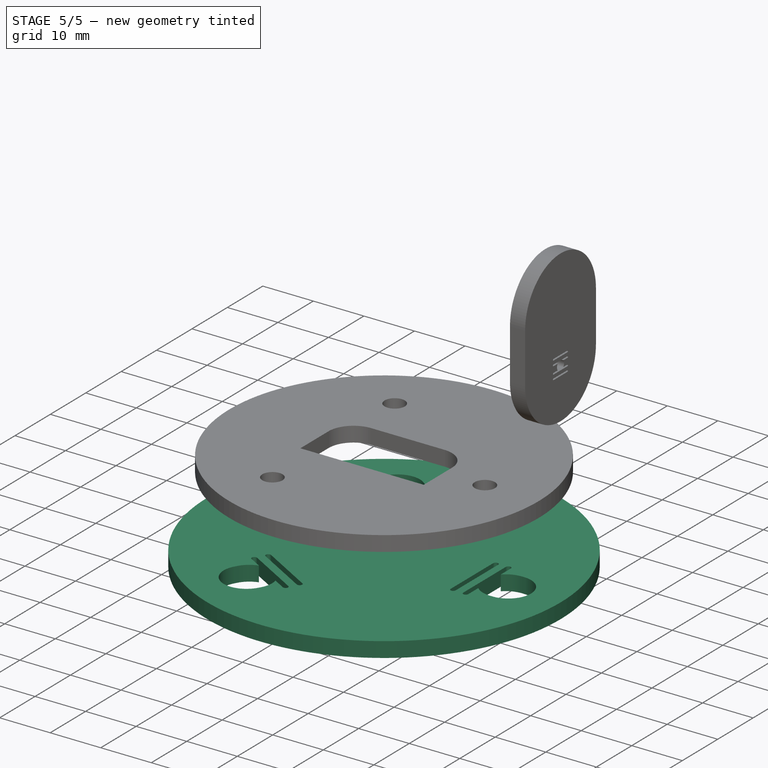
[diagram: stage 5 of 5 — iso view after this stage's code; geometry added in this stage tinted green]
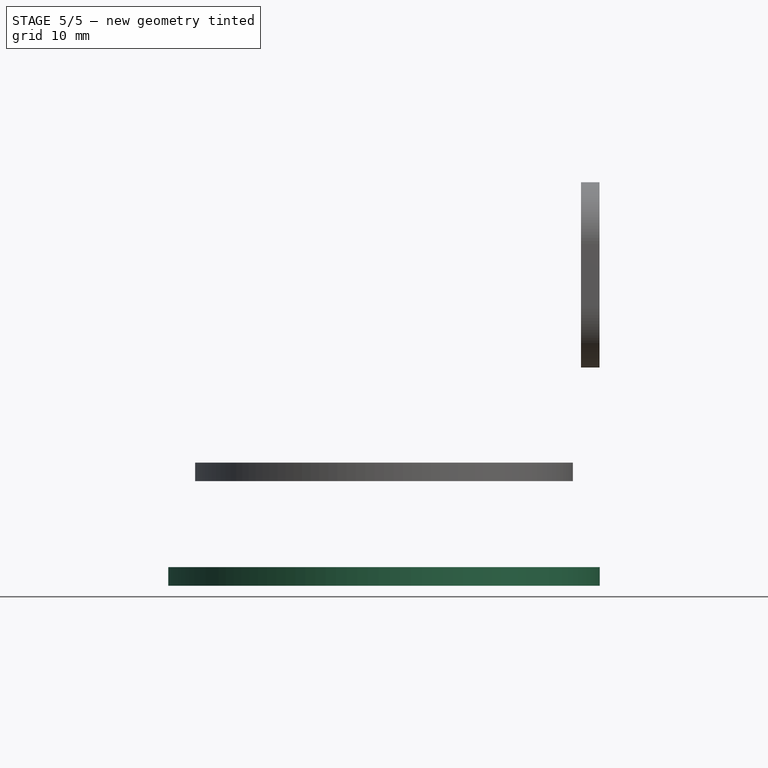
[diagram: stage 5 of 5 — front view after this stage's code; geometry added in this stage tinted green]
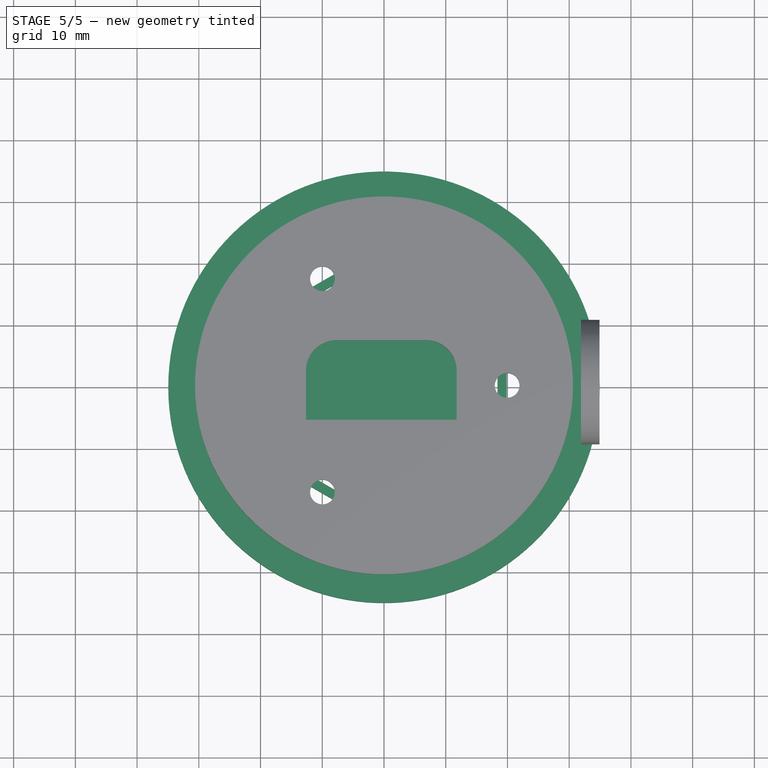
[diagram: stage 5 of 5 — top view after this stage's code; geometry added in this stage tinted green]
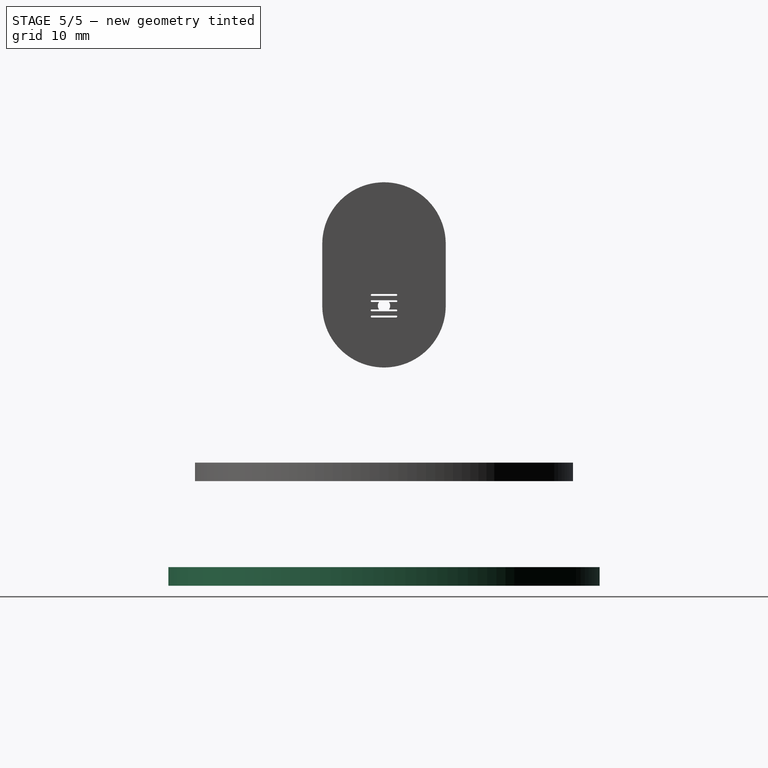
[diagram: stage 5 of 5 — right view after this stage's code; geometry added in this stage tinted green]
FEATURE [Part::Feature] Part__Feature  label="Housing"
  Placement = pos=(-7.38835,7.3,15.85) rot=(0.707107,0.707107,0;3.14159rad)
  shape: bbox 1.7 x 5.6 x 5.6 mm, 4 faces (baked)
FEATURE [Part::Feature] Part__Feature001  label="Housing001"
  Placement = pos=(-7.38835,7.3,15.85) rot=(0.707107,0.707107,0;3.14159rad)
  shape: bbox 37.6 x 2.165 x 2.165 mm, 5 faces (baked)
FEATURE [Part::Feature] Part__Feature002  label="Housing002"
  Placement = pos=(-7.38835,7.3,15.85) rot=(0.707107,0.707107,0;3.14159rad)
  shape: bbox 21.71 x 18.95 x 21.65 mm, 91 faces (baked)
FEATURE [App::Part] Housing  label="Housing003"
  Group = -> [Part__Feature,Part__Feature001,Part__Feature002]
  Origin = -> Origin005
FEATURE [Part::Feature] Part__Feature003  label="End Cap"
  Placement = pos=(-6.27451,5.91929,15.5831) rot=(0.707107,0.707107,0;3.14159rad)
  shape: bbox 12.3 x 19.55 x 21.27 mm, 117 faces (baked)
FEATURE [Part::Feature] Part__Feature004  label="End Cap001"
  Placement = pos=(-6.27451,5.91929,15.5831) rot=(0.707107,0.707107,0;3.14159rad)
  shape: bbox 2 x 0.2 x 14 mm, 14 faces (baked)
FEATURE [App::Part] End_Cap  label="End Cap002"
  Group = -> [Part__Feature003,Part__Feature004]
  Origin = -> Origin006
FEATURE [App::Part] SunFounder_3_6V_DC_Motor_v2  label="DC_Motor"
  Group = -> [Housing,End_Cap]
  Origin = -> Origin007
  Placement = pos=(32,15.85,83) rot=(1,0,0;1.5708rad)
FEATURE [Part::Feature] Part__Feature005  label="battery holder 2 x AAA"
  Placement = pos=(-0.439323,-5.62135,0) rot=(0,0,1;0rad)
  shape: bbox 25.32 x 13.41 x 52 mm, 138 faces (baked)
FEATURE [Part::Feature] Part__Feature006  label="wtyczka"
  Placement = pos=(-6.68932,1.37865,25.5) rot=(0,0,1;0.05451rad)
  shape: bbox 4 x 8.099 x 1.295 mm, 20 faces (baked)
FEATURE [Part::Feature] Part__Feature007  label="wstawka"
  Placement = pos=(-6.68932,1.37865,25.0083) rot=(0.57735,0.57735,0.57735;4.18879rad)
  shape: bbox 6.061 x 6.061 x 2.48 mm, 40 faces (baked)
FEATURE [Part::Feature] Part__Feature008  label="wtyczka001"
  Placement = pos=(5.81068,1.37865,25.5) rot=(0,0,1;0.095616rad)
  shape: bbox 4 x 8.083 x 1.295 mm, 20 faces (baked)
FEATURE [Part::Feature] Part__Feature009  label="wstawka001"
  Placement = pos=(5.81068,1.37865,25.0083) rot=(0.605297,-0.516944,0.605297;2.18737rad)
  shape: bbox 5.987 x 5.987 x 2.48 mm, 40 faces (baked)
FEATURE [Part::Feature] Part__Feature010  label="sprezyna"
  Placement = pos=(5.81068,1.37865,-18.7) rot=(0.57735,0.57735,0.57735;4.18879rad)
  shape: bbox 8.401 x 8.173 x 6.053 mm, 4 faces (baked)
FEATURE [Part::Feature] Part__Feature011  label="sprezyna001"
  Placement = pos=(-6.68932,1.37865,18.7) rot=(0,1,0;1.5708rad)
  shape: bbox 8.173 x 8.401 x 6.053 mm, 4 faces (baked)
FEATURE [Part::Feature] Part__Feature012  label="wstawka002"
  Placement = pos=(5.81068,1.37865,-24.8083) rot=(0.57735,0.57735,-0.57735;2.0944rad)
  shape: bbox 6.061 x 6.061 x 2.48 mm, 40 faces (baked)
FEATURE [Part::Feature] Part__Feature013  label="wstawka003"
  Placement = pos=(-6.68932,1.37865,-24.8083) rot=(0.57735,0.57735,-0.57735;2.0944rad)
  shape: bbox 6.061 x 6.061 x 2.48 mm, 40 faces (baked)
FEATURE [App::Part] koszyk_2xAAA_214  label="Holder_2xAAA"
  Group = -> [Part__Feature005,Part__Feature006,Part__Feature007,Part__Feature008,Part__Feature009,Part__Feature010,Part__Feature011,Part__Feature012,Part__Feature013]
  Origin = -> Origin008
  Placement = pos=(0,0,53.9) rot=(0,0,1;0rad)
FEATURE [PartDesign::SubShapeBinder] Binder
  BindCopyOnChange = 0
  BindMode = 0
  ClaimChildren = false
  Context = -> Body005 [Binder.]
  Fuse = false
  MakeFace = true
  OffsetFill = false
  OffsetIntersection = false
  OffsetJoinType = 0
  OffsetOpenResult = false
  PartialLoad = false
  Relative = true
  Support = -> [koszyk_2xAAA_214]
  _Version = 2
FEATURE [PartDesign::SubShapeBinder] Binder001
  BindCopyOnChange = 0
  BindMode = 0
  ClaimChildren = false
  Context = -> Body005 [Binder001.]
  Fuse = false
  MakeFace = true
  OffsetFill = false
  OffsetIntersection = false
  OffsetJoinType = 0
  OffsetOpenResult = false
  PartialLoad = false
  Relative = true
  Support = -> [Body]
  _Version = 2
FEATURE [Sketcher::SketchObject] Sketch015
  ExternalGeometry = -> [Binder001,Binder]
  FullyConstrained = true
  MapMode = 5
  Placement = pos=(0,0,0) rot=(1,0,0;1.5708rad)
  Support = -> [XZ_Plane009]
  sketch-geometry (4):
    g0: LineSegment StartX=0 StartY=47.95 StartZ=0 EndX=-34.9493 EndY=47.95 EndZ=0
    g1: LineSegment StartX=-34.9493 StartY=47.95 StartZ=0 EndX=-34.9493 EndY=44.95 EndZ=0
    g2: LineSegment StartX=-34.9493 StartY=44.95 StartZ=0 EndX=0 EndY=44.95 EndZ=0
    g3: LineSegment StartX=0 StartY=44.95 StartZ=0 EndX=0 EndY=47.95 EndZ=0
  constraints (12):
    c: PointOnObject(g0,g-2)
    c: Horizontal(g0)
    c: Coincident(g0,g1)
    c: Vertical(g1)
    c: Coincident(g1,g2)
    c: PointOnObject(g2,g-2)
    c: Horizontal(g2)
    c: Coincident(g2,g3)
    c: Coincident(g3,g0)
    c: DistanceY(g3,g3) = 3
    c: PointOnObject(g0,g-4)
    c: PointOnObject(g0,g-3)
FEATURE [PartDesign::Revolution] Revolution004
  Angle = 360
  Axis = (0,-2e-16,1)
  Base = (0,0,0)
  Placement = pos=(0,0,0) rot=(1,0,0;1.5708rad)
  Profile = -> Sketch015
  ReferenceAxis = -> Sketch015 [V_Axis]
FEATURE [PartDesign::Body] Body011  label="small_disk"
  Group = -> [Binder003,Binder004,Binder005,Sketch021,Revolution008,Sketch022,Pocket,Sketch023,Pocket001]
  Origin = -> Origin015
  Tip = -> Pocket001
FEATURE [PartDesign::SubShapeBinder] Binder006
  BindCopyOnChange = 0
  BindMode = 0
  ClaimChildren = false
  Context = -> Body005 [Binder006.]
  Fuse = false
  MakeFace = true
  OffsetFill = false
  OffsetIntersection = false
  OffsetJoinType = 0
  OffsetOpenResult = false
  PartialLoad = false
  Relative = true
  Support = -> [Array]
  _Version = 2
FEATURE [Sketcher::SketchObject] Sketch024
  ExternalGeometry = -> [Binder006]
  FullyConstrained = true
  MapMode = 5
  Placement = pos=(0,1.06e-14,47.95) rot=(0,0,1;3.14159rad)
  Support = -> [Revolution004]
  sketch-geometry (21):
    g0: LineSegment StartX=-24.5808 StartY=-1.97e-14 StartZ=0 EndX=-24.0808 EndY=-2.15e-14 EndZ=0
    g1: LineSegment StartX=-24.5808 StartY=-1.97e-14 StartZ=0 EndX=-27.9847 EndY=-7.3e-15 EndZ=0
    g2: LineSegment StartX=-24.0808 StartY=-2.15e-14 StartZ=0 EndX=-20.677 EndY=-3.38e-14 EndZ=0
    g3: LineSegment StartX=10.3385 StartY=17.9068 StartZ=0 EndX=12.0404 EndY=20.8546 EndZ=0
    g4: LineSegment StartX=12.0404 StartY=20.8546 StartZ=0 EndX=12.2904 EndY=21.2876 EndZ=0
    g5: LineSegment StartX=12.2904 StartY=21.2876 StartZ=0 EndX=13.9923 EndY=24.2354 EndZ=0
    g6: LineSegment StartX=10.3385 StartY=-17.9068 StartZ=0 EndX=12.0404 EndY=-20.8546 EndZ=0
    g7: LineSegment StartX=12.0404 StartY=-20.8546 StartZ=0 EndX=12.2904 EndY=-21.2876 EndZ=0
    g8: LineSegment StartX=12.2904 StartY=-21.2876 StartZ=0 EndX=13.9923 EndY=-24.2354 EndZ=0
    g9: ArcOfCircle CenterX=-24.5808 CenterY=-1.97e-14 CenterZ=0 NormalX=0 NormalY=0 NormalZ=1 AngleXU=0 Radius=4.5 StartAngle=1.5708 EndAngle=4.71239
    g10: ArcOfCircle CenterX=-24.0808 CenterY=-2.15e-14 CenterZ=0 NormalX=0 NormalY=0 NormalZ=1 AngleXU=0 Radius=4.5 StartAngle=4.71239 EndAngle=7.85398
    g11: LineSegment StartX=-24.5808 StartY=-4.5 StartZ=0 EndX=-24.0808 EndY=-4.5 EndZ=0
    g12: LineSegment StartX=-24.0808 StartY=4.5 StartZ=0 EndX=-24.5808 EndY=4.5 EndZ=0
    g13: ArcOfCircle CenterX=12.0404 CenterY=-20.8546 CenterZ=0 NormalX=0 NormalY=0 NormalZ=1 AngleXU=0 Radius=4.5 StartAngle=0.523599 EndAngle=3.66519
    g14: ArcOfCircle CenterX=12.2904 CenterY=-21.2876 CenterZ=0 NormalX=0 NormalY=0 NormalZ=1 AngleXU=0 Radius=4.5 StartAngle=3.66519 EndAngle=6.80678
    g15: LineSegment StartX=8.1433 StartY=-23.1046 StartZ=0 EndX=8.3933 EndY=-23.5376 EndZ=0
    g16: LineSegment StartX=16.1875 StartY=-19.0376 StartZ=0 EndX=15.9375 EndY=-18.6046 EndZ=0
    g17: ArcOfCircle CenterX=12.0404 CenterY=20.8546 CenterZ=0 NormalX=0 NormalY=0 NormalZ=1 AngleXU=0 Radius=4.5 StartAngle=2.61799 EndAngle=5.75959
    g18: ArcOfCircle CenterX=12.2904 CenterY=21.2876 CenterZ=0 NormalX=0 NormalY=0 NormalZ=1 AngleXU=0 Radius=4.5 StartAngle=5.75959 EndAngle=8.90118
    g19: LineSegment StartX=15.9375 StartY=18.6046 StartZ=0 EndX=16.1875 EndY=19.0376 EndZ=0
    g20: LineSegment StartX=8.3933 StartY=23.5376 StartZ=0 EndX=8.1433 EndY=23.1046 EndZ=0
  constraints (48):
    c: Coincident(g1,g0)
    c: Coincident(g1,g-4)
    c: Coincident(g2,g0)
    c: Coincident(g2,g-3)
    c: Parallel(g2,g0)
    c: Parallel(g0,g1)
    c: Coincident(g3,g-7)
    c: Coincident(g4,g3)
    c: Coincident(g5,g4)
    c: Coincident(g5,g-8)
    c: Parallel(g5,g4)
    c: Parallel(g4,g3)
    c: Coincident(g6,g-5)
    c: Coincident(g7,g6)
    c: Coincident(g8,g7)
    c: Coincident(g8,g-6)
    c: Parallel(g8,g7)
    c: Parallel(g7,g6)
    c: Tangent(g9,g11) = -1.5708
    c: Tangent(g11,g10) = -1.5708
    c: Tangent(g10,g12) = -1.5708
    c: Tangent(g12,g9) = -1.5708
    c: Equal(g9,g10)
    c: Coincident(g9,g0)
    c: Coincident(g10,g0)
    c: Tangent(g-3,g12)
    c: Tangent(g13,g15) = -1.5708
    c: Tangent(g15,g14) = -1.5708
    c: Tangent(g14,g16) = -1.5708
    c: Tangent(g16,g13) = -1.5708
    c: Equal(g13,g14)
    c: Coincident(g13,g6)
    c: Coincident(g14,g7)
    c: Equal(g13,g10)
    c: Tangent(g17,g19) = -1.5708
    c: Tangent(g19,g18) = -1.5708
    c: Tangent(g18,g20) = -1.5708
    c: Tangent(g20,g17) = -1.5708
    c: Equal(g17,g18)
    c: Coincident(g17,g3)
    c: Coincident(g18,g4)
    c: Equal(g17,g10)
    c: Equal(g2,g1)
    c: DistanceX(g0,g0) = 0.5
    c: Equal(g3,g5)
    c: Equal(g4,g0)
    c: Equal(g6,g8)
    c: Equal(g7,g0)
FEATURE [PartDesign::Pocket] Pocket002
  BaseFeature = -> Revolution004
  Direction = (0,2e-16,-1)
  Length = 5
  Length2 = 5
  Placement = pos=(0,0,0) rot=(1,0,0;1.5708rad)
  Profile = -> Sketch024
  ReferenceAxis = -> Sketch024 [N_Axis]
  Type = 1
FEATURE [Sketcher::SketchObject] Sketch025
  ExternalGeometry = -> [Pocket002]
  FullyConstrained = true
  MapMode = 5
  Placement = pos=(0,1.06e-14,47.95) rot=(0,0,1;3.14159rad)
  Support = -> [Pocket002]
  sketch-geometry (7):
    g0: LineSegment StartX=-19.8808 StartY=1.61555 StartZ=0 EndX=8.54131 EndY=18.0251 EndZ=0
    g1: LineSegment StartX=8.54131 StartY=18.0251 StartZ=0 EndX=11.3395 EndY=16.4095 EndZ=0
    g2: LineSegment StartX=11.3395 StartY=16.4095 StartZ=0 EndX=11.3395 EndY=-16.4095 EndZ=0
    g3: LineSegment StartX=11.3395 StartY=-16.4095 StartZ=0 EndX=8.54131 EndY=-18.0251 EndZ=0
    g4: LineSegment StartX=8.54131 StartY=-18.0251 StartZ=0 EndX=-19.8808 EndY=-1.61555 EndZ=0
    g5: LineSegment StartX=-19.8808 StartY=-1.61555 StartZ=0 EndX=-19.8808 EndY=1.61555 EndZ=0
    g6: LineSegment StartX=-19.8808 StartY=-1.05e-14 StartZ=0 EndX=-19.5808 EndY=-1.05e-14 EndZ=0
  constraints (22):
    c: PointOnObject(g0,g-3)
    c: PointOnObject(g0,g-4)
    c: Coincident(g0,g1)
    c: PointOnObject(g1,g-4)
    c: Coincident(g1,g2)
    c: PointOnObject(g2,g-5)
    c: Vertical(g2)
    c: Coincident(g2,g3)
    c: PointOnObject(g3,g-5)
    c: Coincident(g3,g4)
    c: PointOnObject(g4,g-3)
    c: Coincident(g4,g5)
    c: Coincident(g5,g0)
    c: Vertical(g5)
    c: Equal(g5,g3)
    c: Angle(g2,g4) = 1.0472
    c: Angle(g0,g2) = 1.0472
    c: PointOnObject(g6,g5)
    c: PointOnObject(g6,g-3)
    c: Horizontal(g6)
    c: Horizontal(g6,g-3)
    c: DistanceX(g6,g6) = 0.3
FEATURE [PartDesign::Pad] Pad003
  BaseFeature = -> Pocket002
  Direction = (0,-2e-16,1)
  Length = 10
  Length2 = 10
  Placement = pos=(0,0,0) rot=(1,0,0;1.5708rad)
  Profile = -> Sketch025
  ReferenceAxis = -> Sketch025 [N_Axis]
  Refine = true
  Reversed = true
  Type = 3
  UpToFace = -> Pocket002 [Face15]
FEATURE [Sketcher::SketchObject] Sketch026
  ExternalGeometry = -> [Pad003]
  FullyConstrained = true
  MapMode = 5
  Placement = pos=(0,1.06e-14,47.95) rot=(0,0,1;3.14159rad)
  Support = -> [Pad003]
  sketch-geometry (36):
    g0: ArcOfCircle CenterX=-20.3808 CenterY=6 CenterZ=0 NormalX=0 NormalY=0 NormalZ=1 AngleXU=0 Radius=0.5 StartAngle=1e-16 EndAngle=3.14159
    g1: ArcOfCircle CenterX=-20.3808 CenterY=-6 CenterZ=0 NormalX=0 NormalY=0 NormalZ=1 AngleXU=0 Radius=0.5 StartAngle=3.14159 EndAngle=6.28319
    g2: LineSegment StartX=-20.8808 StartY=6 StartZ=0 EndX=-20.8808 EndY=-6 EndZ=0
    g3: LineSegment StartX=-19.8808 StartY=-6 StartZ=0 EndX=-19.8808 EndY=6 EndZ=0
    g4: LineSegment StartX=-20.3808 StartY=6 StartZ=0 EndX=-20.3808 EndY=-6 EndZ=0
    g5: LineSegment StartX=-20.3808 StartY=-1.11e-14 StartZ=0 EndX=-19.8808 EndY=-1.11e-14 EndZ=0
    g6: ArcOfCircle CenterX=15.3866 CenterY=-14.6503 CenterZ=0 NormalX=0 NormalY=0 NormalZ=1 AngleXU=0 Radius=0.5 StartAngle=5.23599 EndAngle=8.37758
    g7: ArcOfCircle CenterX=4.99426 CenterY=-20.6503 CenterZ=0 NormalX=0 NormalY=0 NormalZ=1 AngleXU=0 Radius=0.5 StartAngle=2.0944 EndAngle=5.23599
    g8: LineSegment StartX=15.1366 StartY=-14.2173 StartZ=0 EndX=4.74426 EndY=-20.2173 EndZ=0
    g9: LineSegment StartX=5.24426 StartY=-21.0833 StartZ=0 EndX=15.6366 EndY=-15.0833 EndZ=0
    g10: LineSegment StartX=4.99426 StartY=-20.6503 StartZ=0 EndX=15.3866 EndY=-14.6503 EndZ=0
    g11: LineSegment StartX=9.94041 StartY=-17.2173 StartZ=0 EndX=10.1904 EndY=-17.6503 EndZ=0
    g12: ArcOfCircle CenterX=4.99426 CenterY=20.6503 CenterZ=0 NormalX=0 NormalY=0 NormalZ=1 AngleXU=0 Radius=0.5 StartAngle=1.0472 EndAngle=4.18879
    g13: ArcOfCircle CenterX=15.3866 CenterY=14.6503 CenterZ=0 NormalX=0 NormalY=0 NormalZ=1 AngleXU=0 Radius=0.5 StartAngle=4.18879 EndAngle=7.33038
    g14: LineSegment StartX=4.74426 StartY=20.2173 StartZ=0 EndX=15.1366 EndY=14.2173 EndZ=0
    g15: LineSegment StartX=15.6366 StartY=15.0833 StartZ=0 EndX=5.24426 EndY=21.0833 EndZ=0
    g16: LineSegment StartX=4.99426 StartY=20.6503 StartZ=0 EndX=15.3866 EndY=14.6503 EndZ=0
    g17: LineSegment StartX=9.94041 StartY=17.2173 StartZ=0 EndX=10.1904 EndY=17.6503 EndZ=0
    g18: ArcOfCircle CenterX=-17.8808 CenterY=6 CenterZ=0 NormalX=0 NormalY=0 NormalZ=1 AngleXU=0 Radius=0.5 StartAngle=0 EndAngle=3.14159
    g19: ArcOfCircle CenterX=-17.8808 CenterY=-6 CenterZ=0 NormalX=0 NormalY=0 NormalZ=1 AngleXU=0 Radius=0.5 StartAngle=3.14159 EndAngle=6.28319
    g20: LineSegment StartX=-18.3808 StartY=6 StartZ=0 EndX=-18.3808 EndY=-6 EndZ=0
    g21: LineSegment StartX=-17.3808 StartY=-6 StartZ=0 EndX=-17.3808 EndY=6 EndZ=0
    g22: ArcOfCircle CenterX=3.74426 CenterY=18.4852 CenterZ=0 NormalX=0 NormalY=0 NormalZ=1 AngleXU=0 Radius=0.5 StartAngle=1.0472 EndAngle=4.18879
    g23: ArcOfCircle CenterX=14.1366 CenterY=12.4852 CenterZ=0 NormalX=0 NormalY=0 NormalZ=1 AngleXU=0 Radius=0.5 StartAngle=4.18879 EndAngle=7.33038
    g24: LineSegment StartX=3.49426 StartY=18.0522 StartZ=0 EndX=13.8866 EndY=12.0522 EndZ=0
    g25: LineSegment StartX=14.3866 StartY=12.9183 StartZ=0 EndX=3.99426 EndY=18.9183 EndZ=0
    g26: ArcOfCircle CenterX=14.1366 CenterY=-12.4852 CenterZ=0 NormalX=0 NormalY=0 NormalZ=1 AngleXU=0 Radius=0.5 StartAngle=5.23599 EndAngle=8.37758
    g27: ArcOfCircle CenterX=3.74426 CenterY=-18.4852 CenterZ=0 NormalX=0 NormalY=0 NormalZ=1 AngleXU=0 Radius=0.5 StartAngle=2.0944 EndAngle=5.23599
    g28: LineSegment StartX=13.8866 StartY=-12.0522 StartZ=0 EndX=3.49426 EndY=-18.0522 EndZ=0
    g29: LineSegment StartX=3.99426 StartY=-18.9183 StartZ=0 EndX=14.3866 EndY=-12.9183 EndZ=0
    g30: LineSegment StartX=-19.8808 StartY=-1.11e-14 StartZ=0 EndX=-17.8808 EndY=0 EndZ=0
    g31: LineSegment StartX=-17.8808 StartY=-6 StartZ=0 EndX=-17.8808 EndY=6 EndZ=0
    g32: LineSegment StartX=3.74426 StartY=18.4852 StartZ=0 EndX=14.1366 EndY=12.4852 EndZ=0
    g33: LineSegment StartX=9.94041 StartY=-17.2173 StartZ=0 EndX=8.94041 EndY=-15.4852 EndZ=0
    g34: LineSegment StartX=14.1366 StartY=-12.4852 StartZ=0 EndX=3.74426 EndY=-18.4852 EndZ=0
    g35: LineSegment StartX=9.94041 StartY=17.2173 StartZ=0 EndX=8.94041 EndY=15.4852 EndZ=0
  constraints (84):
    c: Tangent(g0,g2) = -1.5708
    c: Tangent(g2,g1) = -1.5708
    c: Tangent(g1,g3) = -1.5708
    c: Tangent(g3,g0) = -1.5708
    c: Equal(g0,g1)
    c: Vertical(g2)
    c: Diameter(g1) = 1
    c: PointOnObject(g-3,g3)
    c: DistanceY(g3,g3) = 12
    c: Coincident(g4,g0)
    c: Coincident(g4,g1)
    c: Horizontal(g5)
    c: Symmetric(g-3,g-3,g5)
    c: Symmetric(g1,g0,g5)
    c: Tangent(g6,g8) = -1.5708
    c: Tangent(g8,g7) = -1.5708
    c: Tangent(g7,g9) = -1.5708
    c: Tangent(g9,g6) = -1.5708
    c: Equal(g6,g7)
    c: Coincident(g10,g7)
    c: Coincident(g10,g6)
    c: Perpendicular(g11,g-4)
    c: Symmetric(g-4,g-4,g11)
    c: Equal(g7,g1)
    c: Equal(g4,g10)
    c: Parallel(g8,g-4)
    c: PointOnObject(g-4,g8)
    c: Symmetric(g6,g7,g11)
    c: Tangent(g12,g14) = -1.5708
    c: Tangent(g14,g13) = -1.5708
    c: Tangent(g13,g15) = -1.5708
    c: Tangent(g15,g12) = -1.5708
    c: Equal(g12,g13)
    c: Coincident(g16,g12)
    c: Coincident(g16,g13)
    c: Perpendicular(g-5,g17)
    c: Symmetric(g-5,g-5,g17)
    c: Equal(g16,g4)
    c: Equal(g1,g12)
    c: Parallel(g14,g-5)
    c: PointOnObject(g-5,g14)
    c: Symmetric(g12,g13,g17)
    c: Tangent(g18,g20) = -1.5708
    c: Tangent(g20,g19) = -1.5708
    c: Tangent(g19,g21) = -1.5708
    c: Tangent(g21,g18) = -1.5708
    c: Equal(g18,g19)
    c: Vertical(g20)
    c: Tangent(g22,g24) = -1.5708
    c: Tangent(g24,g23) = -1.5708
    c: Tangent(g23,g25) = -1.5708
    c: Tangent(g25,g22) = -1.5708
    c: Equal(g22,g23)
    c: Tangent(g26,g28) = -1.5708
    c: Tangent(g28,g27) = -1.5708
    c: Tangent(g27,g29) = -1.5708
    c: Tangent(g29,g26) = -1.5708
    c: Equal(g26,g27)
    c: Equal(g27,g19)
    c: Equal(g19,g23)
    c: Equal(g23,g1)
    c: Equal(g3,g20)
    c: Equal(g14,g25)
    c: Equal(g29,g8)
    c: Parallel(g29,g8)
    c: Parallel(g25,g14)
    c: Coincident(g30,g5)
    c: PointOnObject(g30,g-1)
    c: Coincident(g31,g19)
    c: Coincident(g31,g18)
    c: Symmetric(g18,g19,g30)
    c: Coincident(g32,g22)
    c: Coincident(g32,g23)
    c: Coincident(g33,g11)
    c: Coincident(g34,g26)
    c: Coincident(g34,g27)
    c: Perpendicular(g8,g33)
    c: Symmetric(g26,g27,g33)
    c: Coincident(g35,g17)
    c: Perpendicular(g32,g35)
    c: Symmetric(g22,g23,g35)
    c: Equal(g33,g30)
    c: Equal(g30,g35)
    c: DistanceX(g30,g30) = 2
FEATURE [PartDesign::Pocket] Pocket003
  BaseFeature = -> Pad003
  Direction = (0,2e-16,-1)
  Length = 5
  Length2 = 5
  Placement = pos=(0,0,0) rot=(1,0,0;1.5708rad)
  Profile = -> Sketch026
  ReferenceAxis = -> Sketch026 [N_Axis]
  Type = 1
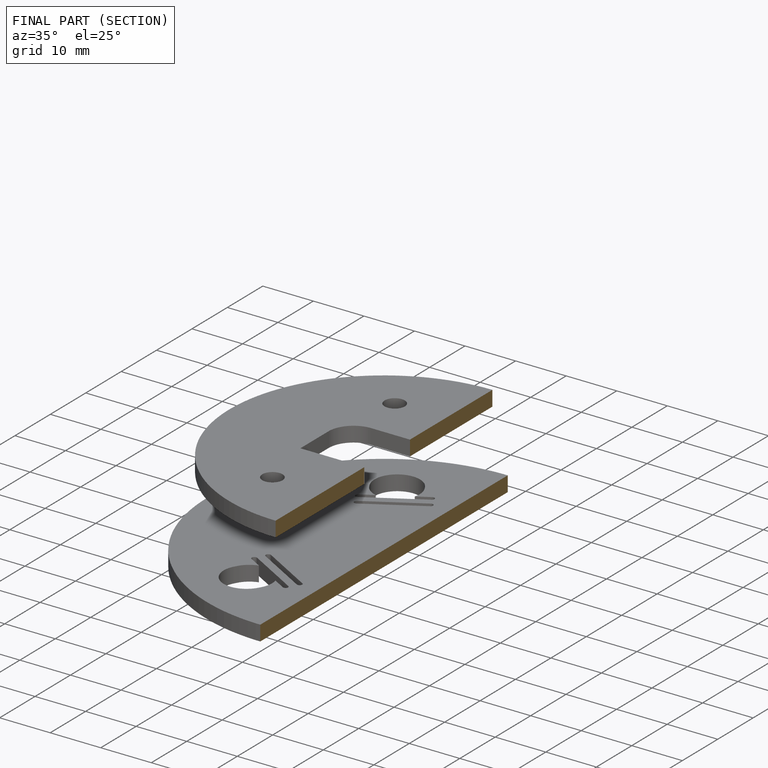
[diagram: finished part — half-section view (interior)]
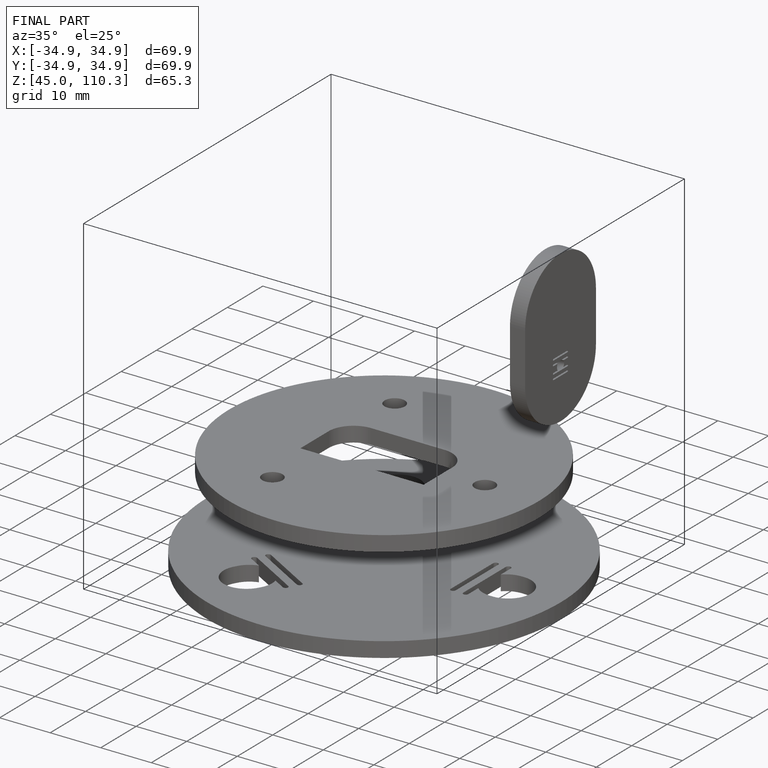
[diagram: finished part — iso view with bounding-box wireframe]
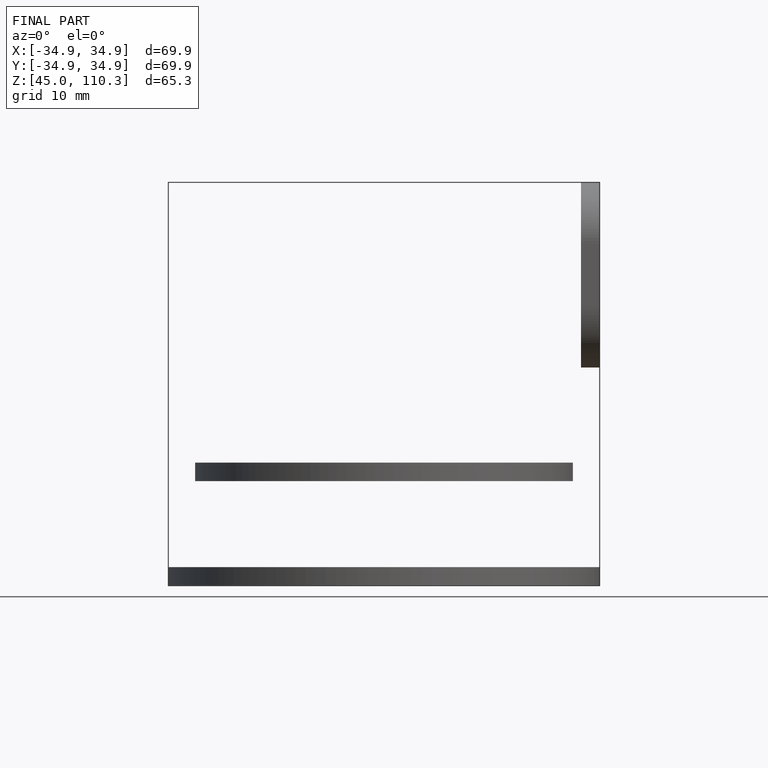
[diagram: finished part — front view with bounding-box wireframe]
